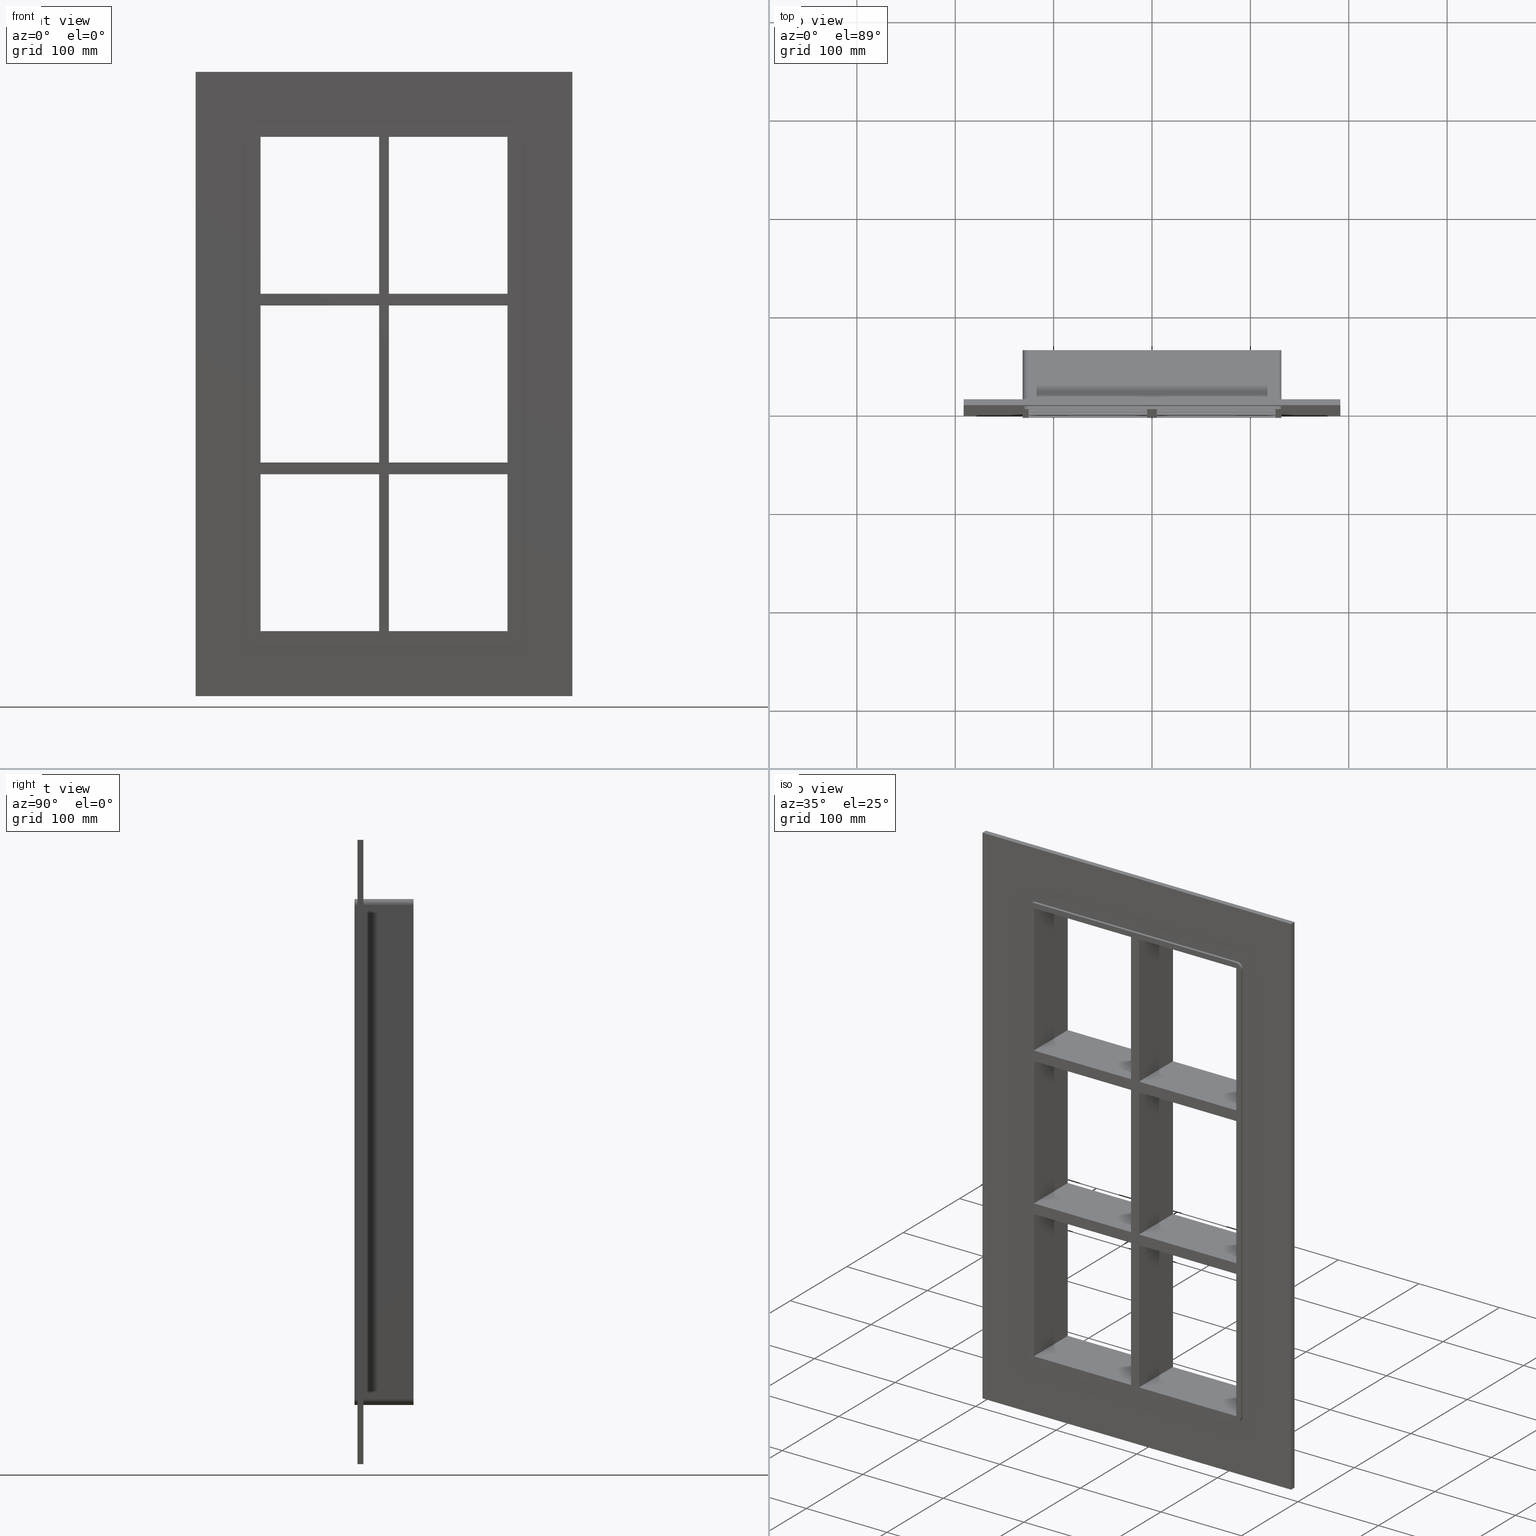
[diagram: canonical four-view strip — front | top / right | iso, engineering-drawing reading convention]
A machine part, canonical four-view strip (front | top / right | iso — engineering-drawing reading convention). The complete STEP part file that produces these views, byte-faithful:
ISO-10303-21;
HEADER;
/****************************************************************
 * Generated by software with PDElib inside                    *
 * PDElib Version v51a, created Wed 11/30/2011                  *
 * ITI Transcendata (http://www.transcendata.com/)              *
 ****************************************************************/
FILE_DESCRIPTION((''),'2;1');
FILE_NAME('C:\\RoxtecConfigurator\\CreatedFiles\\STEP\\G4+4+4X2.stp','2013-06-28T12:52:30',(''),(''),'Autodesk Inventor 2013','Autodesk Inventor 2013','');
FILE_SCHEMA(('AUTOMOTIVE_DESIGN { 1 0 10303 214 1 1 1 1 }'));
ENDSEC;
DATA;
#5=APPLICATION_CONTEXT('automotive design');
#6=APPLICATION_PROTOCOL_DEFINITION('International Standard','automotive_design',2001,#5);
#7=PRODUCT_CONTEXT('',#5,'mechanical');
#8=PRODUCT('roxtec S_SF_G','roxtec S_SF_G',$,(#7));
#9=PRODUCT_RELATED_PRODUCT_CATEGORY('part',$,(#8));
#10=PRODUCT_DEFINITION_FORMATION('',$,#8);
#11=PRODUCT_DEFINITION_CONTEXT('part definition',#5,'design');
#12=PRODUCT_DEFINITION('',$,#10,#11);
#18=(NAMED_UNIT(*)PLANE_ANGLE_UNIT()SI_UNIT($,.RADIAN.));
#19=DIMENSIONAL_EXPONENTS(0.0,0.0,0.0,0.0,0.0,0.0,0.0);
#20=PLANE_ANGLE_MEASURE_WITH_UNIT(PLANE_ANGLE_MEASURE(0.0174532925),#18);
#24=(CONVERSION_BASED_UNIT('DEGREE',#20)NAMED_UNIT(#19)PLANE_ANGLE_UNIT());
#28=(NAMED_UNIT(*)SI_UNIT($,.STERADIAN.)SOLID_ANGLE_UNIT());
#32=(LENGTH_UNIT()NAMED_UNIT(*)SI_UNIT(.MILLI.,.METRE.));
#34=UNCERTAINTY_MEASURE_WITH_UNIT(LENGTH_MEASURE(0.01),#32,'DISTANCE_ACCURACY_VALUE','');
#36=(GEOMETRIC_REPRESENTATION_CONTEXT(3)GLOBAL_UNCERTAINTY_ASSIGNED_CONTEXT((#34))GLOBAL_UNIT_ASSIGNED_CONTEXT((#24,#28,#32))REPRESENTATION_CONTEXT('None','None'));
#37=AXIS2_PLACEMENT_3D('',#38,#39,#40);
#38=CARTESIAN_POINT('',(0.0,0.0,0.0));
#39=DIRECTION('',(0.0,0.0,1.0));
#40=DIRECTION('',(1.0,0.0,0.0));
#41=SHAPE_REPRESENTATION('',(#37),#36);
#42=PRODUCT_DEFINITION_SHAPE('','',#12);
#43=SHAPE_DEFINITION_REPRESENTATION(#42,#41);
#49=(NAMED_UNIT(*)PLANE_ANGLE_UNIT()SI_UNIT($,.RADIAN.));
#50=DIMENSIONAL_EXPONENTS(0.0,0.0,0.0,0.0,0.0,0.0,0.0);
#51=PLANE_ANGLE_MEASURE_WITH_UNIT(PLANE_ANGLE_MEASURE(0.0174532925),#49);
#55=(CONVERSION_BASED_UNIT('DEGREE',#51)NAMED_UNIT(#50)PLANE_ANGLE_UNIT());
#59=(NAMED_UNIT(*)SI_UNIT($,.STERADIAN.)SOLID_ANGLE_UNIT());
#63=(LENGTH_UNIT()NAMED_UNIT(*)SI_UNIT(.MILLI.,.METRE.));
#65=UNCERTAINTY_MEASURE_WITH_UNIT(LENGTH_MEASURE(0.000001),#63,'DISTANCE_ACCURACY_VALUE','');
#67=(GEOMETRIC_REPRESENTATION_CONTEXT(3)GLOBAL_UNCERTAINTY_ASSIGNED_CONTEXT((#65))GLOBAL_UNIT_ASSIGNED_CONTEXT((#55,#59,#63))REPRESENTATION_CONTEXT('','3D'));
#68=CARTESIAN_POINT('',(125.50000000000182,-3.0,79.749999999990763));
#69=DIRECTION('',(0.0,0.0,-1.0));
#70=DIRECTION('',(-1.0,0.0,0.0));
#71=AXIS2_PLACEMENT_3D('',#68,#69,#70);
#72=PLANE('',#71);
#73=CARTESIAN_POINT('',(5.0,57.0,79.749999999990678));
#74=VERTEX_POINT('',#73);
#75=CARTESIAN_POINT('',(5.0,-3.0,79.749999999990649));
#76=VERTEX_POINT('',#75);
#77=CARTESIAN_POINT('',(5.0,57.0,79.749999999990678));
#78=DIRECTION('',(0.0,-1.0,0.0));
#79=VECTOR('',#78,60.0);
#80=LINE('',#77,#79);
#81=EDGE_CURVE('',#74,#76,#80,.T.);
#82=ORIENTED_EDGE('',*,*,#81,.F.);
#83=CARTESIAN_POINT('',(125.50000000000182,57.0,79.749999999990763));
#84=VERTEX_POINT('',#83);
#85=CARTESIAN_POINT('',(125.50000000000182,57.0,79.749999999990763));
#86=DIRECTION('',(-1.0,0.0,0.0));
#87=VECTOR('',#86,120.50000000000182);
#88=LINE('',#85,#87);
#89=EDGE_CURVE('',#84,#74,#88,.T.);
#90=ORIENTED_EDGE('',*,*,#89,.F.);
#91=CARTESIAN_POINT('',(125.50000000000182,-3.0,79.749999999990763));
#92=VERTEX_POINT('',#91);
#93=CARTESIAN_POINT('',(125.5,-3.0,79.749999999990777));
#94=DIRECTION('',(0.0,1.0,0.0));
#95=VECTOR('',#94,60.000000000000007);
#96=LINE('',#93,#95);
#97=EDGE_CURVE('',#92,#84,#96,.T.);
#98=ORIENTED_EDGE('',*,*,#97,.F.);
#99=CARTESIAN_POINT('',(125.50000000000182,-3.0,79.749999999990763));
#100=DIRECTION('',(-1.0,0.0,0.0));
#101=VECTOR('',#100,120.50000000000182);
#102=LINE('',#99,#101);
#103=EDGE_CURVE('',#92,#76,#102,.T.);
#104=ORIENTED_EDGE('',*,*,#103,.T.);
#105=EDGE_LOOP('',(#82,#90,#98,#104));
#106=FACE_OUTER_BOUND('',#105,.T.);
#107=ADVANCED_FACE('',(#106),#72,.T.);
#108=CARTESIAN_POINT('',(-125.49999999999969,-3.0,91.750000000000085));
#109=DIRECTION('',(0.0,0.0,1.0));
#110=DIRECTION('',(1.0,0.0,0.0));
#111=AXIS2_PLACEMENT_3D('',#108,#109,#110);
#112=PLANE('',#111);
#113=CARTESIAN_POINT('',(5.0,-3.0,91.750000000000085));
#114=VERTEX_POINT('',#113);
#115=CARTESIAN_POINT('',(5.0,57.0,91.750000000000085));
#116=VERTEX_POINT('',#115);
#117=CARTESIAN_POINT('',(5.0,-3.0,91.750000000000099));
#118=DIRECTION('',(0.0,1.0,0.0));
#119=VECTOR('',#118,60.0);
#120=LINE('',#117,#119);
#121=EDGE_CURVE('',#114,#116,#120,.T.);
#122=ORIENTED_EDGE('',*,*,#121,.F.);
#123=CARTESIAN_POINT('',(125.49999999999991,-3.0,91.750000000000085));
#124=VERTEX_POINT('',#123);
#125=CARTESIAN_POINT('',(5.0,-3.0,91.750000000000085));
#126=DIRECTION('',(1.0,0.0,0.0));
#127=VECTOR('',#126,120.49999999999991);
#128=LINE('',#125,#127);
#129=EDGE_CURVE('',#114,#124,#128,.T.);
#130=ORIENTED_EDGE('',*,*,#129,.T.);
#131=CARTESIAN_POINT('',(125.4999999999999,57.0,91.750000000000085));
#132=VERTEX_POINT('',#131);
#133=CARTESIAN_POINT('',(125.5,57.000000000000007,91.750000000000099));
#134=DIRECTION('',(0.0,-1.0,0.0));
#135=VECTOR('',#134,60.000000000000007);
#136=LINE('',#133,#135);
#137=EDGE_CURVE('',#132,#124,#136,.T.);
#138=ORIENTED_EDGE('',*,*,#137,.F.);
#139=CARTESIAN_POINT('',(5.0,57.0,91.750000000000085));
#140=DIRECTION('',(1.0,0.0,0.0));
#141=VECTOR('',#140,120.49999999999991);
#142=LINE('',#139,#141);
#143=EDGE_CURVE('',#116,#132,#142,.T.);
#144=ORIENTED_EDGE('',*,*,#143,.F.);
#145=EDGE_LOOP('',(#122,#130,#138,#144));
#146=FACE_OUTER_BOUND('',#145,.T.);
#147=ADVANCED_FACE('',(#146),#112,.T.);
#148=CARTESIAN_POINT('',(-125.49999999999969,-3.0,91.750000000000085));
#149=DIRECTION('',(0.0,0.0,1.0));
#150=DIRECTION('',(1.0,0.0,0.0));
#151=AXIS2_PLACEMENT_3D('',#148,#149,#150);
#152=PLANE('',#151);
#153=CARTESIAN_POINT('',(-5.00000000000134,57.0,91.750000000000114));
#154=VERTEX_POINT('',#153);
#155=CARTESIAN_POINT('',(-5.000000000001332,-3.0,91.750000000000085));
#156=VERTEX_POINT('',#155);
#157=CARTESIAN_POINT('',(-5.000000000001341,57.0,91.750000000000099));
#158=DIRECTION('',(0.0,-1.0,0.0));
#159=VECTOR('',#158,60.0);
#160=LINE('',#157,#159);
#161=EDGE_CURVE('',#154,#156,#160,.T.);
#162=ORIENTED_EDGE('',*,*,#161,.F.);
#163=CARTESIAN_POINT('',(-125.49999999999969,57.0,91.750000000000085));
#164=VERTEX_POINT('',#163);
#165=CARTESIAN_POINT('',(-125.49999999999969,57.0,91.750000000000085));
#166=DIRECTION('',(1.0,0.0,0.0));
#167=VECTOR('',#166,120.49999999999835);
#168=LINE('',#165,#167);
#169=EDGE_CURVE('',#164,#154,#168,.T.);
#170=ORIENTED_EDGE('',*,*,#169,.F.);
#171=CARTESIAN_POINT('',(-125.49999999999969,-3.0,91.750000000000085));
#172=VERTEX_POINT('',#171);
#173=CARTESIAN_POINT('',(-125.5,-3.0,91.750000000000099));
#174=DIRECTION('',(0.0,1.0,0.0));
#175=VECTOR('',#174,60.000000000000007);
#176=LINE('',#173,#175);
#177=EDGE_CURVE('',#172,#164,#176,.T.);
#178=ORIENTED_EDGE('',*,*,#177,.F.);
#179=CARTESIAN_POINT('',(-125.49999999999969,-3.0,91.750000000000085));
#180=DIRECTION('',(1.0,0.0,0.0));
#181=VECTOR('',#180,120.49999999999835);
#182=LINE('',#179,#181);
#183=EDGE_CURVE('',#172,#156,#182,.T.);
#184=ORIENTED_EDGE('',*,*,#183,.T.);
#185=EDGE_LOOP('',(#162,#170,#178,#184));
#186=FACE_OUTER_BOUND('',#185,.T.);
#187=ADVANCED_FACE('',(#186),#152,.T.);
#188=CARTESIAN_POINT('',(125.50000000000182,-3.0,79.749999999990763));
#189=DIRECTION('',(0.0,0.0,-1.0));
#190=DIRECTION('',(-1.0,0.0,0.0));
#191=AXIS2_PLACEMENT_3D('',#188,#189,#190);
#192=PLANE('',#191);
#193=CARTESIAN_POINT('',(-5.000000000001332,-3.0,79.749999999990635));
#194=VERTEX_POINT('',#193);
#195=CARTESIAN_POINT('',(-5.000000000001338,57.0,79.749999999990635));
#196=VERTEX_POINT('',#195);
#197=CARTESIAN_POINT('',(-5.000000000001341,-3.0,79.749999999990649));
#198=DIRECTION('',(0.0,1.0,0.0));
#199=VECTOR('',#198,60.0);
#200=LINE('',#197,#199);
#201=EDGE_CURVE('',#194,#196,#200,.T.);
#202=ORIENTED_EDGE('',*,*,#201,.F.);
#203=CARTESIAN_POINT('',(-125.49999999999969,-3.0,79.749999999990536));
#204=VERTEX_POINT('',#203);
#205=CARTESIAN_POINT('',(-5.000000000001336,-3.0,79.749999999990649));
#206=DIRECTION('',(-1.0,0.0,0.0));
#207=VECTOR('',#206,120.49999999999835);
#208=LINE('',#205,#207);
#209=EDGE_CURVE('',#194,#204,#208,.T.);
#210=ORIENTED_EDGE('',*,*,#209,.T.);
#211=CARTESIAN_POINT('',(-125.49999999999969,57.0,79.749999999990536));
#212=VERTEX_POINT('',#211);
#213=CARTESIAN_POINT('',(-125.5,57.000000000000007,79.74999999999055));
#214=DIRECTION('',(0.0,-1.0,0.0));
#215=VECTOR('',#214,60.000000000000007);
#216=LINE('',#213,#215);
#217=EDGE_CURVE('',#212,#204,#216,.T.);
#218=ORIENTED_EDGE('',*,*,#217,.F.);
#219=CARTESIAN_POINT('',(-5.000000000001336,57.0,79.749999999990649));
#220=DIRECTION('',(-1.0,0.0,0.0));
#221=VECTOR('',#220,120.49999999999835);
#222=LINE('',#219,#221);
#223=EDGE_CURVE('',#196,#212,#222,.T.);
#224=ORIENTED_EDGE('',*,*,#223,.F.);
#225=EDGE_LOOP('',(#202,#210,#218,#224));
#226=FACE_OUTER_BOUND('',#225,.T.);
#227=ADVANCED_FACE('',(#226),#192,.T.);
#228=CARTESIAN_POINT('',(-125.5,0.0,-251.25));
#229=DIRECTION('',(-1.0,0.0,0.0));
#230=DIRECTION('',(0.0,0.0,1.0));
#231=AXIS2_PLACEMENT_3D('',#228,#229,#230);
#232=PLANE('',#231);
#233=ORIENTED_EDGE('',*,*,#217,.T.);
#234=CARTESIAN_POINT('',(-125.49999999999969,-3.0,-79.749999999999943));
#235=VERTEX_POINT('',#234);
#236=CARTESIAN_POINT('',(-125.5,-3.0,-79.749999999999943));
#237=DIRECTION('',(0.0,0.0,1.0));
#238=VECTOR('',#237,159.49999999999048);
#239=LINE('',#236,#238);
#240=EDGE_CURVE('',#235,#204,#239,.T.);
#241=ORIENTED_EDGE('',*,*,#240,.F.);
#242=CARTESIAN_POINT('',(-125.49999999999969,57.0,-79.749999999999943));
#243=VERTEX_POINT('',#242);
#244=CARTESIAN_POINT('',(-125.5,-3.0,-79.749999999999943));
#245=DIRECTION('',(0.0,1.0,0.0));
#246=VECTOR('',#245,60.000000000000007);
#247=LINE('',#244,#246);
#248=EDGE_CURVE('',#235,#243,#247,.T.);
#249=ORIENTED_EDGE('',*,*,#248,.T.);
#250=CARTESIAN_POINT('',(-125.5,57.0,79.749999999990536));
#251=DIRECTION('',(0.0,0.0,-1.0));
#252=VECTOR('',#251,159.49999999999048);
#253=LINE('',#250,#252);
#254=EDGE_CURVE('',#212,#243,#253,.T.);
#255=ORIENTED_EDGE('',*,*,#254,.F.);
#256=EDGE_LOOP('',(#233,#241,#249,#255));
#257=FACE_OUTER_BOUND('',#256,.T.);
#258=ADVANCED_FACE('',(#257),#232,.F.);
#259=CARTESIAN_POINT('',(125.5,0.0,251.25));
#260=DIRECTION('',(1.0,0.0,0.0));
#261=DIRECTION('',(0.0,0.0,-1.0));
#262=AXIS2_PLACEMENT_3D('',#259,#260,#261);
#263=PLANE('',#262);
#264=ORIENTED_EDGE('',*,*,#97,.T.);
#265=CARTESIAN_POINT('',(125.4999999999999,57.0,-79.749999999999943));
#266=VERTEX_POINT('',#265);
#267=CARTESIAN_POINT('',(125.5,57.0,-79.749999999999943));
#268=DIRECTION('',(0.0,0.0,1.0));
#269=VECTOR('',#268,159.49999999999071);
#270=LINE('',#267,#269);
#271=EDGE_CURVE('',#266,#84,#270,.T.);
#272=ORIENTED_EDGE('',*,*,#271,.F.);
#273=CARTESIAN_POINT('',(125.49999999999991,-3.0,-79.749999999999943));
#274=VERTEX_POINT('',#273);
#275=CARTESIAN_POINT('',(125.5,57.000000000000007,-79.749999999999943));
#276=DIRECTION('',(0.0,-1.0,0.0));
#277=VECTOR('',#276,60.000000000000007);
#278=LINE('',#275,#277);
#279=EDGE_CURVE('',#266,#274,#278,.T.);
#280=ORIENTED_EDGE('',*,*,#279,.T.);
#281=CARTESIAN_POINT('',(125.5,-3.0,79.749999999990763));
#282=DIRECTION('',(0.0,0.0,-1.0));
#283=VECTOR('',#282,159.49999999999071);
#284=LINE('',#281,#283);
#285=EDGE_CURVE('',#92,#274,#284,.T.);
#286=ORIENTED_EDGE('',*,*,#285,.F.);
#287=EDGE_LOOP('',(#264,#272,#280,#286));
#288=FACE_OUTER_BOUND('',#287,.T.);
#289=ADVANCED_FACE('',(#288),#263,.F.);
#290=CARTESIAN_POINT('',(125.5,0.0,251.25));
#291=DIRECTION('',(1.0,0.0,0.0));
#292=DIRECTION('',(0.0,0.0,-1.0));
#293=AXIS2_PLACEMENT_3D('',#290,#291,#292);
#294=PLANE('',#293);
#295=ORIENTED_EDGE('',*,*,#137,.T.);
#296=CARTESIAN_POINT('',(125.5,-3.0,251.25));
#297=VERTEX_POINT('',#296);
#298=CARTESIAN_POINT('',(125.5,-3.0,251.25));
#299=DIRECTION('',(0.0,0.0,-1.0));
#300=VECTOR('',#299,159.49999999999991);
#301=LINE('',#298,#300);
#302=EDGE_CURVE('',#297,#124,#301,.T.);
#303=ORIENTED_EDGE('',*,*,#302,.F.);
#304=CARTESIAN_POINT('',(125.5,57.0,251.25));
#305=VERTEX_POINT('',#304);
#306=CARTESIAN_POINT('',(125.5,-3.0,251.25));
#307=DIRECTION('',(0.0,1.0,0.0));
#308=VECTOR('',#307,60.0);
#309=LINE('',#306,#308);
#310=EDGE_CURVE('',#297,#305,#309,.T.);
#311=ORIENTED_EDGE('',*,*,#310,.T.);
#312=CARTESIAN_POINT('',(125.5,57.0,91.750000000000085));
#313=DIRECTION('',(0.0,0.0,1.0));
#314=VECTOR('',#313,159.49999999999991);
#315=LINE('',#312,#314);
#316=EDGE_CURVE('',#132,#305,#315,.T.);
#317=ORIENTED_EDGE('',*,*,#316,.F.);
#318=EDGE_LOOP('',(#295,#303,#311,#317));
#319=FACE_OUTER_BOUND('',#318,.T.);
#320=ADVANCED_FACE('',(#319),#294,.F.);
#321=CARTESIAN_POINT('',(-5.000000000001279,-3.0,-251.25));
#322=DIRECTION('',(-1.0,0.0,0.0));
#323=DIRECTION('',(0.0,0.0,1.0));
#324=AXIS2_PLACEMENT_3D('',#321,#322,#323);
#325=PLANE('',#324);
#326=ORIENTED_EDGE('',*,*,#161,.T.);
#327=CARTESIAN_POINT('',(-5.000000000001368,-3.0,251.25));
#328=VERTEX_POINT('',#327);
#329=CARTESIAN_POINT('',(-5.000000000001339,-3.0,91.750000000000114));
#330=DIRECTION('',(0.0,0.0,1.0));
#331=VECTOR('',#330,159.49999999999989);
#332=LINE('',#329,#331);
#333=EDGE_CURVE('',#156,#328,#332,.T.);
#334=ORIENTED_EDGE('',*,*,#333,.T.);
#335=CARTESIAN_POINT('',(-5.000000000001368,57.0,251.25));
#336=VERTEX_POINT('',#335);
#337=CARTESIAN_POINT('',(-5.000000000001368,57.000000000000007,251.25));
#338=DIRECTION('',(0.0,-1.0,0.0));
#339=VECTOR('',#338,60.000000000000007);
#340=LINE('',#337,#339);
#341=EDGE_CURVE('',#336,#328,#340,.T.);
#342=ORIENTED_EDGE('',*,*,#341,.F.);
#343=CARTESIAN_POINT('',(-5.000000000001339,57.0,91.750000000000114));
#344=DIRECTION('',(0.0,0.0,1.0));
#345=VECTOR('',#344,159.49999999999989);
#346=LINE('',#343,#345);
#347=EDGE_CURVE('',#154,#336,#346,.T.);
#348=ORIENTED_EDGE('',*,*,#347,.F.);
#349=EDGE_LOOP('',(#326,#334,#342,#348));
#350=FACE_OUTER_BOUND('',#349,.T.);
#351=ADVANCED_FACE('',(#350),#325,.T.);
#352=CARTESIAN_POINT('',(-5.000000000001279,-3.0,-251.25));
#353=DIRECTION('',(-1.0,0.0,0.0));
#354=DIRECTION('',(0.0,0.0,1.0));
#355=AXIS2_PLACEMENT_3D('',#352,#353,#354);
#356=PLANE('',#355);
#357=ORIENTED_EDGE('',*,*,#201,.T.);
#358=CARTESIAN_POINT('',(-5.000000000001315,57.0,-79.749999999999943));
#359=VERTEX_POINT('',#358);
#360=CARTESIAN_POINT('',(-5.000000000001309,57.0,-79.749999999999943));
#361=DIRECTION('',(0.0,0.0,1.0));
#362=VECTOR('',#361,159.49999999999056);
#363=LINE('',#360,#362);
#364=EDGE_CURVE('',#359,#196,#363,.T.);
#365=ORIENTED_EDGE('',*,*,#364,.F.);
#366=CARTESIAN_POINT('',(-5.000000000001315,-3.0,-79.749999999999943));
#367=VERTEX_POINT('',#366);
#368=CARTESIAN_POINT('',(-5.000000000001306,57.0,-79.749999999999943));
#369=DIRECTION('',(0.0,-1.0,0.0));
#370=VECTOR('',#369,60.0);
#371=LINE('',#368,#370);
#372=EDGE_CURVE('',#359,#367,#371,.T.);
#373=ORIENTED_EDGE('',*,*,#372,.T.);
#374=CARTESIAN_POINT('',(-5.000000000001309,-3.0,-79.749999999999943));
#375=DIRECTION('',(0.0,0.0,1.0));
#376=VECTOR('',#375,159.49999999999056);
#377=LINE('',#374,#376);
#378=EDGE_CURVE('',#367,#194,#377,.T.);
#379=ORIENTED_EDGE('',*,*,#378,.T.);
#380=EDGE_LOOP('',(#357,#365,#373,#379));
#381=FACE_OUTER_BOUND('',#380,.T.);
#382=ADVANCED_FACE('',(#381),#356,.T.);
#383=CARTESIAN_POINT('',(5.0,-3.0,251.25));
#384=DIRECTION('',(1.0,0.0,0.0));
#385=DIRECTION('',(0.0,0.0,-1.0));
#386=AXIS2_PLACEMENT_3D('',#383,#384,#385);
#387=PLANE('',#386);
#388=ORIENTED_EDGE('',*,*,#121,.T.);
#389=CARTESIAN_POINT('',(5.0,57.0,251.25));
#390=VERTEX_POINT('',#389);
#391=CARTESIAN_POINT('',(5.0,57.0,251.25));
#392=DIRECTION('',(0.0,0.0,-1.0));
#393=VECTOR('',#392,159.49999999999991);
#394=LINE('',#391,#393);
#395=EDGE_CURVE('',#390,#116,#394,.T.);
#396=ORIENTED_EDGE('',*,*,#395,.F.);
#397=CARTESIAN_POINT('',(5.0,-3.0,251.25));
#398=VERTEX_POINT('',#397);
#399=CARTESIAN_POINT('',(5.0,-3.0,251.25));
#400=DIRECTION('',(0.0,1.0,0.0));
#401=VECTOR('',#400,60.000000000000007);
#402=LINE('',#399,#401);
#403=EDGE_CURVE('',#398,#390,#402,.T.);
#404=ORIENTED_EDGE('',*,*,#403,.F.);
#405=CARTESIAN_POINT('',(5.0,-3.0,251.25));
#406=DIRECTION('',(0.0,0.0,-1.0));
#407=VECTOR('',#406,159.49999999999991);
#408=LINE('',#405,#407);
#409=EDGE_CURVE('',#398,#114,#408,.T.);
#410=ORIENTED_EDGE('',*,*,#409,.T.);
#411=EDGE_LOOP('',(#388,#396,#404,#410));
#412=FACE_OUTER_BOUND('',#411,.T.);
#413=ADVANCED_FACE('',(#412),#387,.T.);
#414=CARTESIAN_POINT('',(125.50000000000182,-3.0,-91.750000000009265));
#415=DIRECTION('',(0.0,0.0,-1.0));
#416=DIRECTION('',(-1.0,0.0,0.0));
#417=AXIS2_PLACEMENT_3D('',#414,#415,#416);
#418=PLANE('',#417);
#419=CARTESIAN_POINT('',(5.0,57.0,-91.750000000009365));
#420=VERTEX_POINT('',#419);
#421=CARTESIAN_POINT('',(5.0,-3.0,-91.750000000009365));
#422=VERTEX_POINT('',#421);
#423=CARTESIAN_POINT('',(5.0,57.0,-91.750000000009408));
#424=DIRECTION('',(0.0,-1.0,0.0));
#425=VECTOR('',#424,60.0);
#426=LINE('',#423,#425);
#427=EDGE_CURVE('',#420,#422,#426,.T.);
#428=ORIENTED_EDGE('',*,*,#427,.F.);
#429=CARTESIAN_POINT('',(125.50000000000182,57.0,-91.750000000009265));
#430=VERTEX_POINT('',#429);
#431=CARTESIAN_POINT('',(125.50000000000182,57.0,-91.750000000009265));
#432=DIRECTION('',(-1.0,0.0,0.0));
#433=VECTOR('',#432,120.50000000000182);
#434=LINE('',#431,#433);
#435=EDGE_CURVE('',#430,#420,#434,.T.);
#436=ORIENTED_EDGE('',*,*,#435,.F.);
#437=CARTESIAN_POINT('',(125.50000000000182,-3.0,-91.750000000009265));
#438=VERTEX_POINT('',#437);
#439=CARTESIAN_POINT('',(125.5,-3.0,-91.75000000000928));
#440=DIRECTION('',(0.0,1.0,0.0));
#441=VECTOR('',#440,60.000000000000007);
#442=LINE('',#439,#441);
#443=EDGE_CURVE('',#438,#430,#442,.T.);
#444=ORIENTED_EDGE('',*,*,#443,.F.);
#445=CARTESIAN_POINT('',(125.50000000000182,-3.0,-91.750000000009265));
#446=DIRECTION('',(-1.0,0.0,0.0));
#447=VECTOR('',#446,120.50000000000182);
#448=LINE('',#445,#447);
#449=EDGE_CURVE('',#438,#422,#448,.T.);
#450=ORIENTED_EDGE('',*,*,#449,.T.);
#451=EDGE_LOOP('',(#428,#436,#444,#450));
#452=FACE_OUTER_BOUND('',#451,.T.);
#453=ADVANCED_FACE('',(#452),#418,.T.);
#454=CARTESIAN_POINT('',(125.50000000000182,-3.0,-91.750000000009265));
#455=DIRECTION('',(0.0,0.0,-1.0));
#456=DIRECTION('',(-1.0,0.0,0.0));
#457=AXIS2_PLACEMENT_3D('',#454,#455,#456);
#458=PLANE('',#457);
#459=CARTESIAN_POINT('',(-5.000000000001315,-3.0,-91.750000000009379));
#460=VERTEX_POINT('',#459);
#461=CARTESIAN_POINT('',(-5.000000000001315,57.0,-91.750000000009379));
#462=VERTEX_POINT('',#461);
#463=CARTESIAN_POINT('',(-5.000000000001306,-3.0,-91.750000000009379));
#464=DIRECTION('',(0.0,1.0,0.0));
#465=VECTOR('',#464,60.0);
#466=LINE('',#463,#465);
#467=EDGE_CURVE('',#460,#462,#466,.T.);
#468=ORIENTED_EDGE('',*,*,#467,.F.);
#469=CARTESIAN_POINT('',(-125.49999999999969,-3.0,-91.750000000009493));
#470=VERTEX_POINT('',#469);
#471=CARTESIAN_POINT('',(-5.000000000001307,-3.0,-91.750000000009379));
#472=DIRECTION('',(-1.0,0.0,0.0));
#473=VECTOR('',#472,120.49999999999838);
#474=LINE('',#471,#473);
#475=EDGE_CURVE('',#460,#470,#474,.T.);
#476=ORIENTED_EDGE('',*,*,#475,.T.);
#477=CARTESIAN_POINT('',(-125.49999999999969,57.0,-91.750000000009493));
#478=VERTEX_POINT('',#477);
#479=CARTESIAN_POINT('',(-125.5,57.000000000000007,-91.750000000009507));
#480=DIRECTION('',(0.0,-1.0,0.0));
#481=VECTOR('',#480,60.000000000000007);
#482=LINE('',#479,#481);
#483=EDGE_CURVE('',#478,#470,#482,.T.);
#484=ORIENTED_EDGE('',*,*,#483,.F.);
#485=CARTESIAN_POINT('',(-5.000000000001307,57.0,-91.750000000009379));
#486=DIRECTION('',(-1.0,0.0,0.0));
#487=VECTOR('',#486,120.49999999999838);
#488=LINE('',#485,#487);
#489=EDGE_CURVE('',#462,#478,#488,.T.);
#490=ORIENTED_EDGE('',*,*,#489,.F.);
#491=EDGE_LOOP('',(#468,#476,#484,#490));
#492=FACE_OUTER_BOUND('',#491,.T.);
#493=ADVANCED_FACE('',(#492),#458,.T.);
#494=CARTESIAN_POINT('',(-125.49999999999969,-3.0,-79.749999999999943));
#495=DIRECTION('',(0.0,0.0,1.0));
#496=DIRECTION('',(1.0,0.0,0.0));
#497=AXIS2_PLACEMENT_3D('',#494,#495,#496);
#498=PLANE('',#497);
#499=CARTESIAN_POINT('',(5.0,-3.0,-79.749999999999943));
#500=VERTEX_POINT('',#499);
#501=CARTESIAN_POINT('',(5.0,57.0,-79.749999999999943));
#502=VERTEX_POINT('',#501);
#503=CARTESIAN_POINT('',(5.0,-3.0,-79.749999999999943));
#504=DIRECTION('',(0.0,1.0,0.0));
#505=VECTOR('',#504,60.0);
#506=LINE('',#503,#505);
#507=EDGE_CURVE('',#500,#502,#506,.T.);
#508=ORIENTED_EDGE('',*,*,#507,.F.);
#509=CARTESIAN_POINT('',(5.0,-3.0,-79.749999999999943));
#510=DIRECTION('',(1.0,0.0,0.0));
#511=VECTOR('',#510,120.49999999999991);
#512=LINE('',#509,#511);
#513=EDGE_CURVE('',#500,#274,#512,.T.);
#514=ORIENTED_EDGE('',*,*,#513,.T.);
#515=ORIENTED_EDGE('',*,*,#279,.F.);
#516=CARTESIAN_POINT('',(5.0,57.0,-79.749999999999943));
#517=DIRECTION('',(1.0,0.0,0.0));
#518=VECTOR('',#517,120.49999999999991);
#519=LINE('',#516,#518);
#520=EDGE_CURVE('',#502,#266,#519,.T.);
#521=ORIENTED_EDGE('',*,*,#520,.F.);
#522=EDGE_LOOP('',(#508,#514,#515,#521));
#523=FACE_OUTER_BOUND('',#522,.T.);
#524=ADVANCED_FACE('',(#523),#498,.T.);
#525=CARTESIAN_POINT('',(-125.49999999999969,-3.0,-79.749999999999943));
#526=DIRECTION('',(0.0,0.0,1.0));
#527=DIRECTION('',(1.0,0.0,0.0));
#528=AXIS2_PLACEMENT_3D('',#525,#526,#527);
#529=PLANE('',#528);
#530=ORIENTED_EDGE('',*,*,#372,.F.);
#531=CARTESIAN_POINT('',(-125.49999999999969,57.0,-79.749999999999943));
#532=DIRECTION('',(1.0,0.0,0.0));
#533=VECTOR('',#532,120.49999999999838);
#534=LINE('',#531,#533);
#535=EDGE_CURVE('',#243,#359,#534,.T.);
#536=ORIENTED_EDGE('',*,*,#535,.F.);
#537=ORIENTED_EDGE('',*,*,#248,.F.);
#538=CARTESIAN_POINT('',(-125.49999999999969,-3.0,-79.749999999999943));
#539=DIRECTION('',(1.0,0.0,0.0));
#540=VECTOR('',#539,120.49999999999838);
#541=LINE('',#538,#540);
#542=EDGE_CURVE('',#235,#367,#541,.T.);
#543=ORIENTED_EDGE('',*,*,#542,.T.);
#544=EDGE_LOOP('',(#530,#536,#537,#543));
#545=FACE_OUTER_BOUND('',#544,.T.);
#546=ADVANCED_FACE('',(#545),#529,.T.);
#547=CARTESIAN_POINT('',(-125.5,0.0,-251.25));
#548=DIRECTION('',(-1.0,0.0,0.0));
#549=DIRECTION('',(0.0,0.0,1.0));
#550=AXIS2_PLACEMENT_3D('',#547,#548,#549);
#551=PLANE('',#550);
#552=ORIENTED_EDGE('',*,*,#177,.T.);
#553=CARTESIAN_POINT('',(-125.5,57.0,251.25));
#554=VERTEX_POINT('',#553);
#555=CARTESIAN_POINT('',(-125.5,57.0,251.25));
#556=DIRECTION('',(0.0,0.0,-1.0));
#557=VECTOR('',#556,159.49999999999991);
#558=LINE('',#555,#557);
#559=EDGE_CURVE('',#554,#164,#558,.T.);
#560=ORIENTED_EDGE('',*,*,#559,.F.);
#561=CARTESIAN_POINT('',(-125.5,-3.0,251.25));
#562=VERTEX_POINT('',#561);
#563=CARTESIAN_POINT('',(-125.5,-3.0,251.25));
#564=DIRECTION('',(0.0,1.0,0.0));
#565=VECTOR('',#564,60.0);
#566=LINE('',#563,#565);
#567=EDGE_CURVE('',#562,#554,#566,.T.);
#568=ORIENTED_EDGE('',*,*,#567,.F.);
#569=CARTESIAN_POINT('',(-125.5,-3.0,91.750000000000085));
#570=DIRECTION('',(0.0,0.0,1.0));
#571=VECTOR('',#570,159.49999999999991);
#572=LINE('',#569,#571);
#573=EDGE_CURVE('',#172,#562,#572,.T.);
#574=ORIENTED_EDGE('',*,*,#573,.F.);
#575=EDGE_LOOP('',(#552,#560,#568,#574));
#576=FACE_OUTER_BOUND('',#575,.T.);
#577=ADVANCED_FACE('',(#576),#551,.F.);
#578=CARTESIAN_POINT('',(125.5,0.0,251.25));
#579=DIRECTION('',(1.0,0.0,0.0));
#580=DIRECTION('',(0.0,0.0,-1.0));
#581=AXIS2_PLACEMENT_3D('',#578,#579,#580);
#582=PLANE('',#581);
#583=ORIENTED_EDGE('',*,*,#443,.T.);
#584=CARTESIAN_POINT('',(125.5,57.0,-251.25));
#585=VERTEX_POINT('',#584);
#586=CARTESIAN_POINT('',(125.5,57.0,-251.25));
#587=DIRECTION('',(0.0,0.0,1.0));
#588=VECTOR('',#587,159.49999999999073);
#589=LINE('',#586,#588);
#590=EDGE_CURVE('',#585,#430,#589,.T.);
#591=ORIENTED_EDGE('',*,*,#590,.F.);
#592=CARTESIAN_POINT('',(125.5,-3.0,-251.25));
#593=VERTEX_POINT('',#592);
#594=CARTESIAN_POINT('',(125.5,56.999999999999993,-251.25));
#595=DIRECTION('',(0.0,-1.0,0.0));
#596=VECTOR('',#595,59.999999999999993);
#597=LINE('',#594,#596);
#598=EDGE_CURVE('',#585,#593,#597,.T.);
#599=ORIENTED_EDGE('',*,*,#598,.T.);
#600=CARTESIAN_POINT('',(125.5,-3.0,-91.750000000009265));
#601=DIRECTION('',(0.0,0.0,-1.0));
#602=VECTOR('',#601,159.49999999999073);
#603=LINE('',#600,#602);
#604=EDGE_CURVE('',#438,#593,#603,.T.);
#605=ORIENTED_EDGE('',*,*,#604,.F.);
#606=EDGE_LOOP('',(#583,#591,#599,#605));
#607=FACE_OUTER_BOUND('',#606,.T.);
#608=ADVANCED_FACE('',(#607),#582,.F.);
#609=CARTESIAN_POINT('',(1.397096E-014,57.0,0.0));
#610=DIRECTION('',(0.0,1.0,0.0));
#611=DIRECTION('',(0.0,0.0,1.0));
#612=AXIS2_PLACEMENT_3D('',#609,#610,#611);
#613=PLANE('',#612);
#614=CARTESIAN_POINT('',(125.5,57.0,-257.25));
#615=VERTEX_POINT('',#614);
#616=CARTESIAN_POINT('',(131.50000000000003,57.0,-251.25));
#617=VERTEX_POINT('',#616);
#618=CARTESIAN_POINT('',(125.5,57.0,-251.25));
#619=DIRECTION('',(0.0,-1.0,0.0));
#620=DIRECTION('',(0.707106781186548,0.0,-0.707106781186548));
#621=AXIS2_PLACEMENT_3D('',#618,#619,#620);
#622=CIRCLE('',#621,6.000000000000002);
#623=EDGE_CURVE('',#615,#617,#622,.T.);
#624=ORIENTED_EDGE('',*,*,#623,.F.);
#625=CARTESIAN_POINT('',(-125.5,57.0,-257.25));
#626=VERTEX_POINT('',#625);
#627=CARTESIAN_POINT('',(125.50000000000001,57.0,-257.25));
#628=DIRECTION('',(-1.0,0.0,0.0));
#629=VECTOR('',#628,251.0);
#630=LINE('',#627,#629);
#631=EDGE_CURVE('',#615,#626,#630,.T.);
#632=ORIENTED_EDGE('',*,*,#631,.T.);
#633=CARTESIAN_POINT('',(-131.5,57.0,-251.25));
#634=VERTEX_POINT('',#633);
#635=CARTESIAN_POINT('',(-125.5,57.0,-251.25));
#636=DIRECTION('',(0.0,-1.0,0.0));
#637=DIRECTION('',(-0.707106781186545,0.0,-0.70710678118655));
#638=AXIS2_PLACEMENT_3D('',#635,#636,#637);
#639=CIRCLE('',#638,6.000000000000001);
#640=EDGE_CURVE('',#634,#626,#639,.T.);
#641=ORIENTED_EDGE('',*,*,#640,.F.);
#642=CARTESIAN_POINT('',(-131.5,57.0,251.25));
#643=VERTEX_POINT('',#642);
#644=CARTESIAN_POINT('',(-131.5,57.0,-251.25));
#645=DIRECTION('',(0.0,0.0,1.0));
#646=VECTOR('',#645,502.5);
#647=LINE('',#644,#646);
#648=EDGE_CURVE('',#634,#643,#647,.T.);
#649=ORIENTED_EDGE('',*,*,#648,.T.);
#650=CARTESIAN_POINT('',(-125.49999999999997,57.0,257.25));
#651=VERTEX_POINT('',#650);
#652=CARTESIAN_POINT('',(-125.49999999999997,57.0,251.25));
#653=DIRECTION('',(0.0,-1.0,0.0));
#654=DIRECTION('',(-0.707106781186548,0.0,0.707106781186548));
#655=AXIS2_PLACEMENT_3D('',#652,#653,#654);
#656=CIRCLE('',#655,6.000000000000002);
#657=EDGE_CURVE('',#651,#643,#656,.T.);
#658=ORIENTED_EDGE('',*,*,#657,.F.);
#659=CARTESIAN_POINT('',(125.50000000000004,57.0,257.25));
#660=VERTEX_POINT('',#659);
#661=CARTESIAN_POINT('',(-125.49999999999999,57.0,257.25));
#662=DIRECTION('',(1.0,0.0,0.0));
#663=VECTOR('',#662,251.0);
#664=LINE('',#661,#663);
#665=EDGE_CURVE('',#651,#660,#664,.T.);
#666=ORIENTED_EDGE('',*,*,#665,.T.);
#667=CARTESIAN_POINT('',(131.50000000000003,57.0,251.25));
#668=VERTEX_POINT('',#667);
#669=CARTESIAN_POINT('',(125.50000000000004,57.0,251.25));
#670=DIRECTION('',(0.0,-1.0,0.0));
#671=DIRECTION('',(0.707106781186545,0.0,0.70710678118655));
#672=AXIS2_PLACEMENT_3D('',#669,#670,#671);
#673=CIRCLE('',#672,6.000000000000001);
#674=EDGE_CURVE('',#668,#660,#673,.T.);
#675=ORIENTED_EDGE('',*,*,#674,.F.);
#676=CARTESIAN_POINT('',(131.50000000000003,57.0,251.25));
#677=DIRECTION('',(0.0,0.0,-1.0));
#678=VECTOR('',#677,502.5);
#679=LINE('',#676,#678);
#680=EDGE_CURVE('',#668,#617,#679,.T.);
#681=ORIENTED_EDGE('',*,*,#680,.T.);
#682=EDGE_LOOP('',(#624,#632,#641,#649,#658,#666,#675,#681));
#683=FACE_OUTER_BOUND('',#682,.T.);
#684=ORIENTED_EDGE('',*,*,#254,.T.);
#685=ORIENTED_EDGE('',*,*,#535,.T.);
#686=ORIENTED_EDGE('',*,*,#364,.T.);
#687=ORIENTED_EDGE('',*,*,#223,.T.);
#688=EDGE_LOOP('',(#684,#685,#686,#687));
#689=FACE_BOUND('',#688,.T.);
#690=ORIENTED_EDGE('',*,*,#316,.T.);
#691=CARTESIAN_POINT('',(125.5,57.0,251.25));
#692=DIRECTION('',(-1.0,0.0,0.0));
#693=VECTOR('',#692,120.5);
#694=LINE('',#691,#693);
#695=EDGE_CURVE('',#305,#390,#694,.T.);
#696=ORIENTED_EDGE('',*,*,#695,.T.);
#697=ORIENTED_EDGE('',*,*,#395,.T.);
#698=ORIENTED_EDGE('',*,*,#143,.T.);
#699=EDGE_LOOP('',(#690,#696,#697,#698));
#700=FACE_BOUND('',#699,.T.);
#701=ORIENTED_EDGE('',*,*,#89,.T.);
#702=CARTESIAN_POINT('',(5.0,57.0,79.749999999990678));
#703=DIRECTION('',(0.0,0.0,-1.0));
#704=VECTOR('',#703,159.49999999999062);
#705=LINE('',#702,#704);
#706=EDGE_CURVE('',#74,#502,#705,.T.);
#707=ORIENTED_EDGE('',*,*,#706,.T.);
#708=ORIENTED_EDGE('',*,*,#520,.T.);
#709=ORIENTED_EDGE('',*,*,#271,.T.);
#710=EDGE_LOOP('',(#701,#707,#708,#709));
#711=FACE_BOUND('',#710,.T.);
#712=ORIENTED_EDGE('',*,*,#169,.T.);
#713=ORIENTED_EDGE('',*,*,#347,.T.);
#714=CARTESIAN_POINT('',(-5.000000000001364,57.0,251.25));
#715=DIRECTION('',(-1.0,0.0,0.0));
#716=VECTOR('',#715,120.49999999999864);
#717=LINE('',#714,#716);
#718=EDGE_CURVE('',#336,#554,#717,.T.);
#719=ORIENTED_EDGE('',*,*,#718,.T.);
#720=ORIENTED_EDGE('',*,*,#559,.T.);
#721=EDGE_LOOP('',(#712,#713,#719,#720));
#722=FACE_BOUND('',#721,.T.);
#723=CARTESIAN_POINT('',(-125.5,57.0,-251.25));
#724=VERTEX_POINT('',#723);
#725=CARTESIAN_POINT('',(-125.5,57.0,-91.750000000009493));
#726=DIRECTION('',(0.0,0.0,-1.0));
#727=VECTOR('',#726,159.49999999999051);
#728=LINE('',#725,#727);
#729=EDGE_CURVE('',#478,#724,#728,.T.);
#730=ORIENTED_EDGE('',*,*,#729,.T.);
#731=CARTESIAN_POINT('',(-5.000000000001279,57.0,-251.25));
#732=VERTEX_POINT('',#731);
#733=CARTESIAN_POINT('',(-125.50000000000001,57.0,-251.25));
#734=DIRECTION('',(1.0,0.0,0.0));
#735=VECTOR('',#734,120.49999999999874);
#736=LINE('',#733,#735);
#737=EDGE_CURVE('',#724,#732,#736,.T.);
#738=ORIENTED_EDGE('',*,*,#737,.T.);
#739=CARTESIAN_POINT('',(-5.000000000001279,57.0,-251.25));
#740=DIRECTION('',(0.0,0.0,1.0));
#741=VECTOR('',#740,159.49999999999062);
#742=LINE('',#739,#741);
#743=EDGE_CURVE('',#732,#462,#742,.T.);
#744=ORIENTED_EDGE('',*,*,#743,.T.);
#745=ORIENTED_EDGE('',*,*,#489,.T.);
#746=EDGE_LOOP('',(#730,#738,#744,#745));
#747=FACE_BOUND('',#746,.T.);
#748=ORIENTED_EDGE('',*,*,#435,.T.);
#749=CARTESIAN_POINT('',(5.0,57.0,-251.24999999998423));
#750=VERTEX_POINT('',#749);
#751=CARTESIAN_POINT('',(5.0,57.0,-91.750000000009322));
#752=DIRECTION('',(0.0,0.0,-1.0));
#753=VECTOR('',#752,159.49999999997488);
#754=LINE('',#751,#753);
#755=EDGE_CURVE('',#420,#750,#754,.T.);
#756=ORIENTED_EDGE('',*,*,#755,.T.);
#757=CARTESIAN_POINT('',(5.0,57.0,-251.25));
#758=DIRECTION('',(1.0,0.0,0.0));
#759=VECTOR('',#758,120.5);
#760=LINE('',#757,#759);
#761=EDGE_CURVE('',#750,#585,#760,.T.);
#762=ORIENTED_EDGE('',*,*,#761,.T.);
#763=ORIENTED_EDGE('',*,*,#590,.T.);
#764=EDGE_LOOP('',(#748,#756,#762,#763));
#765=FACE_BOUND('',#764,.T.);
#766=ADVANCED_FACE('',(#683,#689,#700,#711,#722,#747,#765),#613,.T.);
#767=CARTESIAN_POINT('',(5.0,-3.0,251.25));
#768=DIRECTION('',(1.0,0.0,0.0));
#769=DIRECTION('',(0.0,0.0,-1.0));
#770=AXIS2_PLACEMENT_3D('',#767,#768,#769);
#771=PLANE('',#770);
#772=ORIENTED_EDGE('',*,*,#81,.T.);
#773=CARTESIAN_POINT('',(5.0,-3.0,79.749999999990621));
#774=DIRECTION('',(0.0,0.0,-1.0));
#775=VECTOR('',#774,159.49999999999056);
#776=LINE('',#773,#775);
#777=EDGE_CURVE('',#76,#500,#776,.T.);
#778=ORIENTED_EDGE('',*,*,#777,.T.);
#779=ORIENTED_EDGE('',*,*,#507,.T.);
#780=ORIENTED_EDGE('',*,*,#706,.F.);
#781=EDGE_LOOP('',(#772,#778,#779,#780));
#782=FACE_OUTER_BOUND('',#781,.T.);
#783=ADVANCED_FACE('',(#782),#771,.T.);
#784=CARTESIAN_POINT('',(-5.000000000001279,-3.0,-251.25));
#785=DIRECTION('',(-1.0,0.0,0.0));
#786=DIRECTION('',(0.0,0.0,1.0));
#787=AXIS2_PLACEMENT_3D('',#784,#785,#786);
#788=PLANE('',#787);
#789=ORIENTED_EDGE('',*,*,#467,.T.);
#790=ORIENTED_EDGE('',*,*,#743,.F.);
#791=CARTESIAN_POINT('',(-5.000000000001279,-3.0,-251.25));
#792=VERTEX_POINT('',#791);
#793=CARTESIAN_POINT('',(-5.000000000001279,-3.0,-251.25));
#794=DIRECTION('',(0.0,1.0,0.0));
#795=VECTOR('',#794,60.000000000000007);
#796=LINE('',#793,#795);
#797=EDGE_CURVE('',#792,#732,#796,.T.);
#798=ORIENTED_EDGE('',*,*,#797,.F.);
#799=CARTESIAN_POINT('',(-5.000000000001279,-3.0,-251.25));
#800=DIRECTION('',(0.0,0.0,1.0));
#801=VECTOR('',#800,159.49999999999062);
#802=LINE('',#799,#801);
#803=EDGE_CURVE('',#792,#460,#802,.T.);
#804=ORIENTED_EDGE('',*,*,#803,.T.);
#805=EDGE_LOOP('',(#789,#790,#798,#804));
#806=FACE_OUTER_BOUND('',#805,.T.);
#807=ADVANCED_FACE('',(#806),#788,.T.);
#808=CARTESIAN_POINT('',(5.0,-3.0,251.25));
#809=DIRECTION('',(1.0,0.0,0.0));
#810=DIRECTION('',(0.0,0.0,-1.0));
#811=AXIS2_PLACEMENT_3D('',#808,#809,#810);
#812=PLANE('',#811);
#813=ORIENTED_EDGE('',*,*,#427,.T.);
#814=CARTESIAN_POINT('',(5.0,-3.0,-251.24999999998423));
#815=VERTEX_POINT('',#814);
#816=CARTESIAN_POINT('',(5.0,-3.0,-91.750000000009322));
#817=DIRECTION('',(0.0,0.0,-1.0));
#818=VECTOR('',#817,159.49999999997488);
#819=LINE('',#816,#818);
#820=EDGE_CURVE('',#422,#815,#819,.T.);
#821=ORIENTED_EDGE('',*,*,#820,.T.);
#822=CARTESIAN_POINT('',(5.0,57.000000000000007,-251.25));
#823=DIRECTION('',(0.0,-1.0,0.0));
#824=VECTOR('',#823,60.000000000000007);
#825=LINE('',#822,#824);
#826=EDGE_CURVE('',#750,#815,#825,.T.);
#827=ORIENTED_EDGE('',*,*,#826,.F.);
#828=ORIENTED_EDGE('',*,*,#755,.F.);
#829=EDGE_LOOP('',(#813,#821,#827,#828));
#830=FACE_OUTER_BOUND('',#829,.T.);
#831=ADVANCED_FACE('',(#830),#812,.T.);
#832=CARTESIAN_POINT('',(125.5,0.0,-251.25));
#833=DIRECTION('',(0.0,0.0,-1.0));
#834=DIRECTION('',(-1.0,0.0,0.0));
#835=AXIS2_PLACEMENT_3D('',#832,#833,#834);
#836=PLANE('',#835);
#837=ORIENTED_EDGE('',*,*,#797,.T.);
#838=ORIENTED_EDGE('',*,*,#737,.F.);
#839=CARTESIAN_POINT('',(-125.5,-3.0,-251.25));
#840=VERTEX_POINT('',#839);
#841=CARTESIAN_POINT('',(-125.5,-3.0,-251.25));
#842=DIRECTION('',(0.0,1.0,0.0));
#843=VECTOR('',#842,60.0);
#844=LINE('',#841,#843);
#845=EDGE_CURVE('',#840,#724,#844,.T.);
#846=ORIENTED_EDGE('',*,*,#845,.F.);
#847=CARTESIAN_POINT('',(-5.000000000001279,-3.0,-251.25));
#848=DIRECTION('',(-1.0,0.0,0.0));
#849=VECTOR('',#848,120.49999999999874);
#850=LINE('',#847,#849);
#851=EDGE_CURVE('',#792,#840,#850,.T.);
#852=ORIENTED_EDGE('',*,*,#851,.F.);
#853=EDGE_LOOP('',(#837,#838,#846,#852));
#854=FACE_OUTER_BOUND('',#853,.T.);
#855=ADVANCED_FACE('',(#854),#836,.F.);
#856=CARTESIAN_POINT('',(125.5,0.0,-251.25));
#857=DIRECTION('',(0.0,0.0,-1.0));
#858=DIRECTION('',(-1.0,0.0,0.0));
#859=AXIS2_PLACEMENT_3D('',#856,#857,#858);
#860=PLANE('',#859);
#861=ORIENTED_EDGE('',*,*,#826,.T.);
#862=CARTESIAN_POINT('',(125.5,-3.0,-251.25));
#863=DIRECTION('',(-1.0,0.0,0.0));
#864=VECTOR('',#863,120.5);
#865=LINE('',#862,#864);
#866=EDGE_CURVE('',#593,#815,#865,.T.);
#867=ORIENTED_EDGE('',*,*,#866,.F.);
#868=ORIENTED_EDGE('',*,*,#598,.F.);
#869=ORIENTED_EDGE('',*,*,#761,.F.);
#870=EDGE_LOOP('',(#861,#867,#868,#869));
#871=FACE_OUTER_BOUND('',#870,.T.);
#872=ADVANCED_FACE('',(#871),#860,.F.);
#873=CARTESIAN_POINT('',(-125.5,0.0,251.25));
#874=DIRECTION('',(0.0,0.0,1.0));
#875=DIRECTION('',(1.0,0.0,0.0));
#876=AXIS2_PLACEMENT_3D('',#873,#874,#875);
#877=PLANE('',#876);
#878=ORIENTED_EDGE('',*,*,#403,.T.);
#879=ORIENTED_EDGE('',*,*,#695,.F.);
#880=ORIENTED_EDGE('',*,*,#310,.F.);
#881=CARTESIAN_POINT('',(5.000000000000007,-3.0,251.25));
#882=DIRECTION('',(1.0,0.0,0.0));
#883=VECTOR('',#882,120.5);
#884=LINE('',#881,#883);
#885=EDGE_CURVE('',#398,#297,#884,.T.);
#886=ORIENTED_EDGE('',*,*,#885,.F.);
#887=EDGE_LOOP('',(#878,#879,#880,#886));
#888=FACE_OUTER_BOUND('',#887,.T.);
#889=ADVANCED_FACE('',(#888),#877,.F.);
#890=CARTESIAN_POINT('',(-125.5,0.0,251.25));
#891=DIRECTION('',(0.0,0.0,1.0));
#892=DIRECTION('',(1.0,0.0,0.0));
#893=AXIS2_PLACEMENT_3D('',#890,#891,#892);
#894=PLANE('',#893);
#895=ORIENTED_EDGE('',*,*,#341,.T.);
#896=CARTESIAN_POINT('',(-125.5,-3.0,251.25));
#897=DIRECTION('',(1.0,0.0,0.0));
#898=VECTOR('',#897,120.49999999999864);
#899=LINE('',#896,#898);
#900=EDGE_CURVE('',#562,#328,#899,.T.);
#901=ORIENTED_EDGE('',*,*,#900,.F.);
#902=ORIENTED_EDGE('',*,*,#567,.T.);
#903=ORIENTED_EDGE('',*,*,#718,.F.);
#904=EDGE_LOOP('',(#895,#901,#902,#903));
#905=FACE_OUTER_BOUND('',#904,.T.);
#906=ADVANCED_FACE('',(#905),#894,.F.);
#907=CARTESIAN_POINT('',(-1.675973E-014,6.000000000000001,3.621673E-014));
#908=DIRECTION('',(0.0,1.0,0.0));
#909=DIRECTION('',(0.0,0.0,1.0));
#910=AXIS2_PLACEMENT_3D('',#907,#908,#909);
#911=PLANE('',#910);
#912=CARTESIAN_POINT('',(-191.50000000000003,6.000000000000001,317.25));
#913=VERTEX_POINT('',#912);
#914=CARTESIAN_POINT('',(191.49999999999994,6.000000000000001,317.25));
#915=VERTEX_POINT('',#914);
#916=CARTESIAN_POINT('',(-191.50000000000003,6.000000000000001,317.25));
#917=DIRECTION('',(1.0,0.0,0.0));
#918=VECTOR('',#917,383.0);
#919=LINE('',#916,#918);
#920=EDGE_CURVE('',#913,#915,#919,.T.);
#921=ORIENTED_EDGE('',*,*,#920,.T.);
#922=CARTESIAN_POINT('',(191.49999999999994,6.000000000000001,-317.24999999999994));
#923=VERTEX_POINT('',#922);
#924=CARTESIAN_POINT('',(191.5,6.000000000000001,317.25));
#925=DIRECTION('',(0.0,0.0,-1.0));
#926=VECTOR('',#925,634.5);
#927=LINE('',#924,#926);
#928=EDGE_CURVE('',#915,#923,#927,.T.);
#929=ORIENTED_EDGE('',*,*,#928,.T.);
#930=CARTESIAN_POINT('',(-191.50000000000003,6.000000000000001,-317.24999999999994));
#931=VERTEX_POINT('',#930);
#932=CARTESIAN_POINT('',(191.5,6.000000000000001,-317.24999999999994));
#933=DIRECTION('',(-1.0,0.0,0.0));
#934=VECTOR('',#933,383.0);
#935=LINE('',#932,#934);
#936=EDGE_CURVE('',#923,#931,#935,.T.);
#937=ORIENTED_EDGE('',*,*,#936,.T.);
#938=CARTESIAN_POINT('',(-191.50000000000003,6.000000000000001,-317.24999999999994));
#939=DIRECTION('',(0.0,0.0,1.0));
#940=VECTOR('',#939,634.5);
#941=LINE('',#938,#940);
#942=EDGE_CURVE('',#931,#913,#941,.T.);
#943=ORIENTED_EDGE('',*,*,#942,.T.);
#944=EDGE_LOOP('',(#921,#929,#937,#943));
#945=FACE_OUTER_BOUND('',#944,.T.);
#946=CARTESIAN_POINT('',(-125.5,6.000000000000001,-257.25));
#947=VERTEX_POINT('',#946);
#948=CARTESIAN_POINT('',(-131.5,6.000000000000001,-251.25));
#949=VERTEX_POINT('',#948);
#950=CARTESIAN_POINT('',(-125.5,6.000000000000001,-251.25));
#951=DIRECTION('',(0.0,1.0,0.0));
#952=DIRECTION('',(-0.707106781186545,0.0,-0.70710678118655));
#953=AXIS2_PLACEMENT_3D('',#950,#951,#952);
#954=CIRCLE('',#953,6.000000000000001);
#955=EDGE_CURVE('',#947,#949,#954,.T.);
#956=ORIENTED_EDGE('',*,*,#955,.F.);
#957=CARTESIAN_POINT('',(125.5,6.000000000000001,-257.25));
#958=VERTEX_POINT('',#957);
#959=CARTESIAN_POINT('',(125.5,6.000000000000001,-257.25));
#960=DIRECTION('',(-1.0,0.0,0.0));
#961=VECTOR('',#960,251.0);
#962=LINE('',#959,#961);
#963=EDGE_CURVE('',#958,#947,#962,.T.);
#964=ORIENTED_EDGE('',*,*,#963,.F.);
#965=CARTESIAN_POINT('',(131.50000000000003,6.000000000000001,-251.25));
#966=VERTEX_POINT('',#965);
#967=CARTESIAN_POINT('',(125.5,6.000000000000001,-251.25));
#968=DIRECTION('',(0.0,1.0,0.0));
#969=DIRECTION('',(0.707106781186548,0.0,-0.707106781186548));
#970=AXIS2_PLACEMENT_3D('',#967,#968,#969);
#971=CIRCLE('',#970,6.000000000000002);
#972=EDGE_CURVE('',#966,#958,#971,.T.);
#973=ORIENTED_EDGE('',*,*,#972,.F.);
#974=CARTESIAN_POINT('',(131.50000000000003,6.000000000000001,251.25));
#975=VERTEX_POINT('',#974);
#976=CARTESIAN_POINT('',(131.50000000000003,6.000000000000001,251.25));
#977=DIRECTION('',(0.0,0.0,-1.0));
#978=VECTOR('',#977,502.5);
#979=LINE('',#976,#978);
#980=EDGE_CURVE('',#975,#966,#979,.T.);
#981=ORIENTED_EDGE('',*,*,#980,.F.);
#982=CARTESIAN_POINT('',(125.50000000000004,6.000000000000001,257.25));
#983=VERTEX_POINT('',#982);
#984=CARTESIAN_POINT('',(125.50000000000004,6.000000000000001,251.25));
#985=DIRECTION('',(0.0,1.0,0.0));
#986=DIRECTION('',(0.707106781186545,0.0,0.70710678118655));
#987=AXIS2_PLACEMENT_3D('',#984,#985,#986);
#988=CIRCLE('',#987,6.000000000000001);
#989=EDGE_CURVE('',#983,#975,#988,.T.);
#990=ORIENTED_EDGE('',*,*,#989,.F.);
#991=CARTESIAN_POINT('',(-125.49999999999997,6.000000000000001,257.25));
#992=VERTEX_POINT('',#991);
#993=CARTESIAN_POINT('',(-125.49999999999997,6.000000000000001,257.25));
#994=DIRECTION('',(1.0,0.0,0.0));
#995=VECTOR('',#994,251.0);
#996=LINE('',#993,#995);
#997=EDGE_CURVE('',#992,#983,#996,.T.);
#998=ORIENTED_EDGE('',*,*,#997,.F.);
#999=CARTESIAN_POINT('',(-131.5,6.000000000000001,251.25));
#1000=VERTEX_POINT('',#999);
#1001=CARTESIAN_POINT('',(-125.49999999999997,6.000000000000001,251.25));
#1002=DIRECTION('',(0.0,1.0,0.0));
#1003=DIRECTION('',(-0.707106781186548,0.0,0.707106781186548));
#1004=AXIS2_PLACEMENT_3D('',#1001,#1002,#1003);
#1005=CIRCLE('',#1004,6.000000000000002);
#1006=EDGE_CURVE('',#1000,#992,#1005,.T.);
#1007=ORIENTED_EDGE('',*,*,#1006,.F.);
#1008=CARTESIAN_POINT('',(-131.5,6.000000000000001,-251.25));
#1009=DIRECTION('',(0.0,0.0,1.0));
#1010=VECTOR('',#1009,502.5);
#1011=LINE('',#1008,#1010);
#1012=EDGE_CURVE('',#949,#1000,#1011,.T.);
#1013=ORIENTED_EDGE('',*,*,#1012,.F.);
#1014=EDGE_LOOP('',(#956,#964,#973,#981,#990,#998,#1007,#1013));
#1015=FACE_BOUND('',#1014,.T.);
#1016=ADVANCED_FACE('',(#945,#1015),#911,.T.);
#1017=CARTESIAN_POINT('',(-1.675973E-014,0.0,3.621673E-014));
#1018=DIRECTION('',(0.0,1.0,0.0));
#1019=DIRECTION('',(0.0,0.0,1.0));
#1020=AXIS2_PLACEMENT_3D('',#1017,#1018,#1019);
#1021=PLANE('',#1020);
#1022=CARTESIAN_POINT('',(-191.50000000000003,0.0,317.25));
#1023=VERTEX_POINT('',#1022);
#1024=CARTESIAN_POINT('',(191.5,0.0,317.25));
#1025=VERTEX_POINT('',#1024);
#1026=CARTESIAN_POINT('',(-191.50000000000003,0.0,317.25));
#1027=DIRECTION('',(1.0,0.0,0.0));
#1028=VECTOR('',#1027,383.0);
#1029=LINE('',#1026,#1028);
#1030=EDGE_CURVE('',#1023,#1025,#1029,.T.);
#1031=ORIENTED_EDGE('',*,*,#1030,.F.);
#1032=CARTESIAN_POINT('',(-191.50000000000003,0.0,-317.24999999999994));
#1033=VERTEX_POINT('',#1032);
#1034=CARTESIAN_POINT('',(-191.50000000000003,0.0,-317.24999999999994));
#1035=DIRECTION('',(0.0,0.0,1.0));
#1036=VECTOR('',#1035,634.5);
#1037=LINE('',#1034,#1036);
#1038=EDGE_CURVE('',#1033,#1023,#1037,.T.);
#1039=ORIENTED_EDGE('',*,*,#1038,.F.);
#1040=CARTESIAN_POINT('',(191.5,0.0,-317.24999999999994));
#1041=VERTEX_POINT('',#1040);
#1042=CARTESIAN_POINT('',(191.5,0.0,-317.24999999999994));
#1043=DIRECTION('',(-1.0,0.0,0.0));
#1044=VECTOR('',#1043,383.0);
#1045=LINE('',#1042,#1044);
#1046=EDGE_CURVE('',#1041,#1033,#1045,.T.);
#1047=ORIENTED_EDGE('',*,*,#1046,.F.);
#1048=CARTESIAN_POINT('',(191.5,0.0,317.25));
#1049=DIRECTION('',(0.0,0.0,-1.0));
#1050=VECTOR('',#1049,634.5);
#1051=LINE('',#1048,#1050);
#1052=EDGE_CURVE('',#1025,#1041,#1051,.T.);
#1053=ORIENTED_EDGE('',*,*,#1052,.F.);
#1054=EDGE_LOOP('',(#1031,#1039,#1047,#1053));
#1055=FACE_OUTER_BOUND('',#1054,.T.);
#1056=CARTESIAN_POINT('',(-131.5,0.0,-251.25));
#1057=VERTEX_POINT('',#1056);
#1058=CARTESIAN_POINT('',(-125.5,0.0,-257.25));
#1059=VERTEX_POINT('',#1058);
#1060=CARTESIAN_POINT('',(-125.5,0.0,-251.25));
#1061=DIRECTION('',(0.0,-1.0,0.0));
#1062=DIRECTION('',(-0.707106781186545,0.0,-0.70710678118655));
#1063=AXIS2_PLACEMENT_3D('',#1060,#1061,#1062);
#1064=CIRCLE('',#1063,6.000000000000001);
#1065=EDGE_CURVE('',#1057,#1059,#1064,.T.);
#1066=ORIENTED_EDGE('',*,*,#1065,.F.);
#1067=CARTESIAN_POINT('',(-131.5,0.0,251.25));
#1068=VERTEX_POINT('',#1067);
#1069=CARTESIAN_POINT('',(-131.5,0.0,251.25));
#1070=DIRECTION('',(0.0,0.0,-1.0));
#1071=VECTOR('',#1070,502.5);
#1072=LINE('',#1069,#1071);
#1073=EDGE_CURVE('',#1068,#1057,#1072,.T.);
#1074=ORIENTED_EDGE('',*,*,#1073,.F.);
#1075=CARTESIAN_POINT('',(-125.49999999999997,0.0,257.25));
#1076=VERTEX_POINT('',#1075);
#1077=CARTESIAN_POINT('',(-125.49999999999997,0.0,251.25));
#1078=DIRECTION('',(0.0,-1.0,0.0));
#1079=DIRECTION('',(-0.707106781186548,0.0,0.707106781186548));
#1080=AXIS2_PLACEMENT_3D('',#1077,#1078,#1079);
#1081=CIRCLE('',#1080,6.000000000000002);
#1082=EDGE_CURVE('',#1076,#1068,#1081,.T.);
#1083=ORIENTED_EDGE('',*,*,#1082,.F.);
#1084=CARTESIAN_POINT('',(125.50000000000004,0.0,257.25));
#1085=VERTEX_POINT('',#1084);
#1086=CARTESIAN_POINT('',(125.50000000000003,0.0,257.25));
#1087=DIRECTION('',(-1.0,0.0,0.0));
#1088=VECTOR('',#1087,251.0);
#1089=LINE('',#1086,#1088);
#1090=EDGE_CURVE('',#1085,#1076,#1089,.T.);
#1091=ORIENTED_EDGE('',*,*,#1090,.F.);
#1092=CARTESIAN_POINT('',(131.50000000000003,0.0,251.25));
#1093=VERTEX_POINT('',#1092);
#1094=CARTESIAN_POINT('',(125.50000000000004,0.0,251.25));
#1095=DIRECTION('',(0.0,-1.0,0.0));
#1096=DIRECTION('',(0.707106781186545,0.0,0.70710678118655));
#1097=AXIS2_PLACEMENT_3D('',#1094,#1095,#1096);
#1098=CIRCLE('',#1097,6.000000000000001);
#1099=EDGE_CURVE('',#1093,#1085,#1098,.T.);
#1100=ORIENTED_EDGE('',*,*,#1099,.F.);
#1101=CARTESIAN_POINT('',(131.50000000000003,0.0,-251.25));
#1102=VERTEX_POINT('',#1101);
#1103=CARTESIAN_POINT('',(131.50000000000003,0.0,-251.25000000000003));
#1104=DIRECTION('',(0.0,0.0,1.0));
#1105=VECTOR('',#1104,502.5);
#1106=LINE('',#1103,#1105);
#1107=EDGE_CURVE('',#1102,#1093,#1106,.T.);
#1108=ORIENTED_EDGE('',*,*,#1107,.F.);
#1109=CARTESIAN_POINT('',(125.5,0.0,-257.25));
#1110=VERTEX_POINT('',#1109);
#1111=CARTESIAN_POINT('',(125.5,0.0,-251.25));
#1112=DIRECTION('',(0.0,-1.0,0.0));
#1113=DIRECTION('',(0.707106781186548,0.0,-0.707106781186548));
#1114=AXIS2_PLACEMENT_3D('',#1111,#1112,#1113);
#1115=CIRCLE('',#1114,6.000000000000002);
#1116=EDGE_CURVE('',#1110,#1102,#1115,.T.);
#1117=ORIENTED_EDGE('',*,*,#1116,.F.);
#1118=CARTESIAN_POINT('',(-125.5,0.0,-257.25));
#1119=DIRECTION('',(1.0,0.0,0.0));
#1120=VECTOR('',#1119,251.0);
#1121=LINE('',#1118,#1120);
#1122=EDGE_CURVE('',#1059,#1110,#1121,.T.);
#1123=ORIENTED_EDGE('',*,*,#1122,.F.);
#1124=EDGE_LOOP('',(#1066,#1074,#1083,#1091,#1100,#1108,#1117,#1123));
#1125=FACE_BOUND('',#1124,.T.);
#1126=ADVANCED_FACE('',(#1055,#1125),#1021,.F.);
#1127=CARTESIAN_POINT('',(-191.50000000000003,0.0,-317.24999999999994));
#1128=DIRECTION('',(-1.0,0.0,0.0));
#1129=DIRECTION('',(0.0,0.0,1.0));
#1130=AXIS2_PLACEMENT_3D('',#1127,#1128,#1129);
#1131=PLANE('',#1130);
#1132=ORIENTED_EDGE('',*,*,#1038,.T.);
#1133=CARTESIAN_POINT('',(-191.50000000000003,0.0,317.25));
#1134=DIRECTION('',(0.0,1.0,0.0));
#1135=VECTOR('',#1134,6.000000000000001);
#1136=LINE('',#1133,#1135);
#1137=EDGE_CURVE('',#1023,#913,#1136,.T.);
#1138=ORIENTED_EDGE('',*,*,#1137,.T.);
#1139=ORIENTED_EDGE('',*,*,#942,.F.);
#1140=CARTESIAN_POINT('',(-191.50000000000003,0.0,-317.24999999999994));
#1141=DIRECTION('',(0.0,1.0,0.0));
#1142=VECTOR('',#1141,6.000000000000001);
#1143=LINE('',#1140,#1142);
#1144=EDGE_CURVE('',#1033,#931,#1143,.T.);
#1145=ORIENTED_EDGE('',*,*,#1144,.F.);
#1146=EDGE_LOOP('',(#1132,#1138,#1139,#1145));
#1147=FACE_OUTER_BOUND('',#1146,.T.);
#1148=ADVANCED_FACE('',(#1147),#1131,.T.);
#1149=CARTESIAN_POINT('',(191.5,0.0,-317.24999999999994));
#1150=DIRECTION('',(0.0,0.0,-1.0));
#1151=DIRECTION('',(-1.0,0.0,0.0));
#1152=AXIS2_PLACEMENT_3D('',#1149,#1150,#1151);
#1153=PLANE('',#1152);
#1154=ORIENTED_EDGE('',*,*,#1046,.T.);
#1155=ORIENTED_EDGE('',*,*,#1144,.T.);
#1156=ORIENTED_EDGE('',*,*,#936,.F.);
#1157=CARTESIAN_POINT('',(191.5,0.0,-317.24999999999994));
#1158=DIRECTION('',(0.0,1.0,0.0));
#1159=VECTOR('',#1158,6.000000000000001);
#1160=LINE('',#1157,#1159);
#1161=EDGE_CURVE('',#1041,#923,#1160,.T.);
#1162=ORIENTED_EDGE('',*,*,#1161,.F.);
#1163=EDGE_LOOP('',(#1154,#1155,#1156,#1162));
#1164=FACE_OUTER_BOUND('',#1163,.T.);
#1165=ADVANCED_FACE('',(#1164),#1153,.T.);
#1166=CARTESIAN_POINT('',(191.5,0.0,317.25));
#1167=DIRECTION('',(1.0,0.0,0.0));
#1168=DIRECTION('',(0.0,0.0,-1.0));
#1169=AXIS2_PLACEMENT_3D('',#1166,#1167,#1168);
#1170=PLANE('',#1169);
#1171=ORIENTED_EDGE('',*,*,#1052,.T.);
#1172=ORIENTED_EDGE('',*,*,#1161,.T.);
#1173=ORIENTED_EDGE('',*,*,#928,.F.);
#1174=CARTESIAN_POINT('',(191.5,0.0,317.25));
#1175=DIRECTION('',(0.0,1.0,0.0));
#1176=VECTOR('',#1175,6.000000000000001);
#1177=LINE('',#1174,#1176);
#1178=EDGE_CURVE('',#1025,#915,#1177,.T.);
#1179=ORIENTED_EDGE('',*,*,#1178,.F.);
#1180=EDGE_LOOP('',(#1171,#1172,#1173,#1179));
#1181=FACE_OUTER_BOUND('',#1180,.T.);
#1182=ADVANCED_FACE('',(#1181),#1170,.T.);
#1183=CARTESIAN_POINT('',(-191.50000000000003,0.0,317.25));
#1184=DIRECTION('',(0.0,0.0,1.0));
#1185=DIRECTION('',(1.0,0.0,0.0));
#1186=AXIS2_PLACEMENT_3D('',#1183,#1184,#1185);
#1187=PLANE('',#1186);
#1188=ORIENTED_EDGE('',*,*,#1030,.T.);
#1189=ORIENTED_EDGE('',*,*,#1178,.T.);
#1190=ORIENTED_EDGE('',*,*,#920,.F.);
#1191=ORIENTED_EDGE('',*,*,#1137,.F.);
#1192=EDGE_LOOP('',(#1188,#1189,#1190,#1191));
#1193=FACE_OUTER_BOUND('',#1192,.T.);
#1194=ADVANCED_FACE('',(#1193),#1187,.T.);
#1195=CARTESIAN_POINT('',(-125.5,0.0,-251.25));
#1196=DIRECTION('',(-1.0,0.0,0.0));
#1197=DIRECTION('',(0.0,0.0,1.0));
#1198=AXIS2_PLACEMENT_3D('',#1195,#1196,#1197);
#1199=PLANE('',#1198);
#1200=ORIENTED_EDGE('',*,*,#483,.T.);
#1201=CARTESIAN_POINT('',(-125.5,-3.0,-251.25));
#1202=DIRECTION('',(0.0,0.0,1.0));
#1203=VECTOR('',#1202,159.49999999999051);
#1204=LINE('',#1201,#1203);
#1205=EDGE_CURVE('',#840,#470,#1204,.T.);
#1206=ORIENTED_EDGE('',*,*,#1205,.F.);
#1207=ORIENTED_EDGE('',*,*,#845,.T.);
#1208=ORIENTED_EDGE('',*,*,#729,.F.);
#1209=EDGE_LOOP('',(#1200,#1206,#1207,#1208));
#1210=FACE_OUTER_BOUND('',#1209,.T.);
#1211=ADVANCED_FACE('',(#1210),#1199,.F.);
#1212=CARTESIAN_POINT('',(125.50000000000004,0.0,251.25));
#1213=DIRECTION('',(0.0,-1.0,0.0));
#1214=DIRECTION('',(0.707106781186545,0.0,0.70710678118655));
#1215=AXIS2_PLACEMENT_3D('',#1212,#1213,#1214);
#1216=CYLINDRICAL_SURFACE('',#1215,6.000000000000001);
#1217=ORIENTED_EDGE('',*,*,#1099,.T.);
#1218=CARTESIAN_POINT('',(125.50000000000004,-3.0,257.25));
#1219=VERTEX_POINT('',#1218);
#1220=CARTESIAN_POINT('',(125.50000000000004,0.0,257.25));
#1221=DIRECTION('',(0.0,-1.0,0.0));
#1222=VECTOR('',#1221,3.0);
#1223=LINE('',#1220,#1222);
#1224=EDGE_CURVE('',#1085,#1219,#1223,.T.);
#1225=ORIENTED_EDGE('',*,*,#1224,.T.);
#1226=CARTESIAN_POINT('',(131.50000000000003,-3.0,251.25));
#1227=VERTEX_POINT('',#1226);
#1228=CARTESIAN_POINT('',(125.50000000000004,-3.0,251.25));
#1229=DIRECTION('',(0.0,1.0,0.0));
#1230=DIRECTION('',(0.707106781186545,0.0,0.70710678118655));
#1231=AXIS2_PLACEMENT_3D('',#1228,#1229,#1230);
#1232=CIRCLE('',#1231,6.000000000000001);
#1233=EDGE_CURVE('',#1219,#1227,#1232,.T.);
#1234=ORIENTED_EDGE('',*,*,#1233,.T.);
#1235=CARTESIAN_POINT('',(131.50000000000003,-3.0,251.25));
#1236=DIRECTION('',(0.0,1.0,0.0));
#1237=VECTOR('',#1236,3.0);
#1238=LINE('',#1235,#1237);
#1239=EDGE_CURVE('',#1227,#1093,#1238,.T.);
#1240=ORIENTED_EDGE('',*,*,#1239,.T.);
#1241=EDGE_LOOP('',(#1217,#1225,#1234,#1240));
#1242=FACE_OUTER_BOUND('',#1241,.T.);
#1243=ADVANCED_FACE('',(#1242),#1216,.T.);
#1244=CARTESIAN_POINT('',(125.50000000000004,0.0,251.25));
#1245=DIRECTION('',(0.0,-1.0,0.0));
#1246=DIRECTION('',(0.707106781186545,0.0,0.70710678118655));
#1247=AXIS2_PLACEMENT_3D('',#1244,#1245,#1246);
#1248=CYLINDRICAL_SURFACE('',#1247,6.000000000000001);
#1249=ORIENTED_EDGE('',*,*,#989,.T.);
#1250=CARTESIAN_POINT('',(131.50000000000003,6.000000000000001,251.25));
#1251=DIRECTION('',(0.0,1.0,0.0));
#1252=VECTOR('',#1251,51.0);
#1253=LINE('',#1250,#1252);
#1254=EDGE_CURVE('',#975,#668,#1253,.T.);
#1255=ORIENTED_EDGE('',*,*,#1254,.T.);
#1256=ORIENTED_EDGE('',*,*,#674,.T.);
#1257=CARTESIAN_POINT('',(125.50000000000004,57.0,257.25));
#1258=DIRECTION('',(0.0,-1.0,0.0));
#1259=VECTOR('',#1258,51.0);
#1260=LINE('',#1257,#1259);
#1261=EDGE_CURVE('',#660,#983,#1260,.T.);
#1262=ORIENTED_EDGE('',*,*,#1261,.T.);
#1263=EDGE_LOOP('',(#1249,#1255,#1256,#1262));
#1264=FACE_OUTER_BOUND('',#1263,.T.);
#1265=ADVANCED_FACE('',(#1264),#1248,.T.);
#1266=CARTESIAN_POINT('',(131.50000000000003,0.0,257.25));
#1267=DIRECTION('',(1.0,0.0,0.0));
#1268=DIRECTION('',(0.0,0.0,-1.0));
#1269=AXIS2_PLACEMENT_3D('',#1266,#1267,#1268);
#1270=PLANE('',#1269);
#1271=ORIENTED_EDGE('',*,*,#1107,.T.);
#1272=ORIENTED_EDGE('',*,*,#1239,.F.);
#1273=CARTESIAN_POINT('',(131.50000000000003,-3.0,-251.25));
#1274=VERTEX_POINT('',#1273);
#1275=CARTESIAN_POINT('',(131.50000000000003,-3.0,-251.25));
#1276=DIRECTION('',(0.0,0.0,1.0));
#1277=VECTOR('',#1276,502.5);
#1278=LINE('',#1275,#1277);
#1279=EDGE_CURVE('',#1274,#1227,#1278,.T.);
#1280=ORIENTED_EDGE('',*,*,#1279,.F.);
#1281=CARTESIAN_POINT('',(131.50000000000003,0.0,-251.25));
#1282=DIRECTION('',(0.0,-1.0,0.0));
#1283=VECTOR('',#1282,3.0);
#1284=LINE('',#1281,#1283);
#1285=EDGE_CURVE('',#1102,#1274,#1284,.T.);
#1286=ORIENTED_EDGE('',*,*,#1285,.F.);
#1287=EDGE_LOOP('',(#1271,#1272,#1280,#1286));
#1288=FACE_OUTER_BOUND('',#1287,.T.);
#1289=ADVANCED_FACE('',(#1288),#1270,.T.);
#1290=CARTESIAN_POINT('',(131.50000000000003,0.0,257.25));
#1291=DIRECTION('',(1.0,0.0,0.0));
#1292=DIRECTION('',(0.0,0.0,-1.0));
#1293=AXIS2_PLACEMENT_3D('',#1290,#1291,#1292);
#1294=PLANE('',#1293);
#1295=ORIENTED_EDGE('',*,*,#980,.T.);
#1296=CARTESIAN_POINT('',(131.50000000000003,57.0,-251.25));
#1297=DIRECTION('',(0.0,-1.0,0.0));
#1298=VECTOR('',#1297,51.0);
#1299=LINE('',#1296,#1298);
#1300=EDGE_CURVE('',#617,#966,#1299,.T.);
#1301=ORIENTED_EDGE('',*,*,#1300,.F.);
#1302=ORIENTED_EDGE('',*,*,#680,.F.);
#1303=ORIENTED_EDGE('',*,*,#1254,.F.);
#1304=EDGE_LOOP('',(#1295,#1301,#1302,#1303));
#1305=FACE_OUTER_BOUND('',#1304,.T.);
#1306=ADVANCED_FACE('',(#1305),#1294,.T.);
#1307=CARTESIAN_POINT('',(-131.5,0.0,257.25));
#1308=DIRECTION('',(0.0,0.0,1.0));
#1309=DIRECTION('',(1.0,0.0,0.0));
#1310=AXIS2_PLACEMENT_3D('',#1307,#1308,#1309);
#1311=PLANE('',#1310);
#1312=ORIENTED_EDGE('',*,*,#1090,.T.);
#1313=CARTESIAN_POINT('',(-125.49999999999997,-3.0,257.25));
#1314=VERTEX_POINT('',#1313);
#1315=CARTESIAN_POINT('',(-125.49999999999997,-3.0,257.25));
#1316=DIRECTION('',(0.0,1.0,0.0));
#1317=VECTOR('',#1316,3.0);
#1318=LINE('',#1315,#1317);
#1319=EDGE_CURVE('',#1314,#1076,#1318,.T.);
#1320=ORIENTED_EDGE('',*,*,#1319,.F.);
#1321=CARTESIAN_POINT('',(125.5,-3.0,257.25));
#1322=DIRECTION('',(-1.0,0.0,0.0));
#1323=VECTOR('',#1322,251.0);
#1324=LINE('',#1321,#1323);
#1325=EDGE_CURVE('',#1219,#1314,#1324,.T.);
#1326=ORIENTED_EDGE('',*,*,#1325,.F.);
#1327=ORIENTED_EDGE('',*,*,#1224,.F.);
#1328=EDGE_LOOP('',(#1312,#1320,#1326,#1327));
#1329=FACE_OUTER_BOUND('',#1328,.T.);
#1330=ADVANCED_FACE('',(#1329),#1311,.T.);
#1331=CARTESIAN_POINT('',(125.5,0.0,-251.25));
#1332=DIRECTION('',(0.0,1.0,0.0));
#1333=DIRECTION('',(0.707106781186548,0.0,-0.707106781186548));
#1334=AXIS2_PLACEMENT_3D('',#1331,#1332,#1333);
#1335=CYLINDRICAL_SURFACE('',#1334,6.000000000000002);
#1336=ORIENTED_EDGE('',*,*,#1116,.T.);
#1337=ORIENTED_EDGE('',*,*,#1285,.T.);
#1338=CARTESIAN_POINT('',(125.5,-3.0,-257.25));
#1339=VERTEX_POINT('',#1338);
#1340=CARTESIAN_POINT('',(125.5,-3.0,-251.25));
#1341=DIRECTION('',(0.0,1.0,0.0));
#1342=DIRECTION('',(0.707106781186548,0.0,-0.707106781186548));
#1343=AXIS2_PLACEMENT_3D('',#1340,#1341,#1342);
#1344=CIRCLE('',#1343,6.000000000000002);
#1345=EDGE_CURVE('',#1274,#1339,#1344,.T.);
#1346=ORIENTED_EDGE('',*,*,#1345,.T.);
#1347=CARTESIAN_POINT('',(125.5,-3.0,-257.25));
#1348=DIRECTION('',(0.0,1.0,0.0));
#1349=VECTOR('',#1348,3.0);
#1350=LINE('',#1347,#1349);
#1351=EDGE_CURVE('',#1339,#1110,#1350,.T.);
#1352=ORIENTED_EDGE('',*,*,#1351,.T.);
#1353=EDGE_LOOP('',(#1336,#1337,#1346,#1352));
#1354=FACE_OUTER_BOUND('',#1353,.T.);
#1355=ADVANCED_FACE('',(#1354),#1335,.T.);
#1356=CARTESIAN_POINT('',(125.5,0.0,-251.25));
#1357=DIRECTION('',(0.0,1.0,0.0));
#1358=DIRECTION('',(0.707106781186548,0.0,-0.707106781186548));
#1359=AXIS2_PLACEMENT_3D('',#1356,#1357,#1358);
#1360=CYLINDRICAL_SURFACE('',#1359,6.000000000000002);
#1361=ORIENTED_EDGE('',*,*,#972,.T.);
#1362=CARTESIAN_POINT('',(125.5,6.000000000000001,-257.25));
#1363=DIRECTION('',(0.0,1.0,0.0));
#1364=VECTOR('',#1363,51.0);
#1365=LINE('',#1362,#1364);
#1366=EDGE_CURVE('',#958,#615,#1365,.T.);
#1367=ORIENTED_EDGE('',*,*,#1366,.T.);
#1368=ORIENTED_EDGE('',*,*,#623,.T.);
#1369=ORIENTED_EDGE('',*,*,#1300,.T.);
#1370=EDGE_LOOP('',(#1361,#1367,#1368,#1369));
#1371=FACE_OUTER_BOUND('',#1370,.T.);
#1372=ADVANCED_FACE('',(#1371),#1360,.T.);
#1373=CARTESIAN_POINT('',(-125.49999999999997,0.0,251.25));
#1374=DIRECTION('',(0.0,1.0,0.0));
#1375=DIRECTION('',(-0.707106781186548,0.0,0.707106781186548));
#1376=AXIS2_PLACEMENT_3D('',#1373,#1374,#1375);
#1377=CYLINDRICAL_SURFACE('',#1376,6.000000000000002);
#1378=ORIENTED_EDGE('',*,*,#1082,.T.);
#1379=CARTESIAN_POINT('',(-131.5,-3.0,251.25));
#1380=VERTEX_POINT('',#1379);
#1381=CARTESIAN_POINT('',(-131.5,0.0,251.25));
#1382=DIRECTION('',(0.0,-1.0,0.0));
#1383=VECTOR('',#1382,3.0);
#1384=LINE('',#1381,#1383);
#1385=EDGE_CURVE('',#1068,#1380,#1384,.T.);
#1386=ORIENTED_EDGE('',*,*,#1385,.T.);
#1387=CARTESIAN_POINT('',(-125.49999999999997,-3.0,251.25));
#1388=DIRECTION('',(0.0,1.0,0.0));
#1389=DIRECTION('',(-0.707106781186548,0.0,0.707106781186548));
#1390=AXIS2_PLACEMENT_3D('',#1387,#1388,#1389);
#1391=CIRCLE('',#1390,6.000000000000002);
#1392=EDGE_CURVE('',#1380,#1314,#1391,.T.);
#1393=ORIENTED_EDGE('',*,*,#1392,.T.);
#1394=ORIENTED_EDGE('',*,*,#1319,.T.);
#1395=EDGE_LOOP('',(#1378,#1386,#1393,#1394));
#1396=FACE_OUTER_BOUND('',#1395,.T.);
#1397=ADVANCED_FACE('',(#1396),#1377,.T.);
#1398=CARTESIAN_POINT('',(131.50000000000003,0.0,-257.25));
#1399=DIRECTION('',(0.0,0.0,-1.0));
#1400=DIRECTION('',(-1.0,0.0,0.0));
#1401=AXIS2_PLACEMENT_3D('',#1398,#1399,#1400);
#1402=PLANE('',#1401);
#1403=ORIENTED_EDGE('',*,*,#1122,.T.);
#1404=ORIENTED_EDGE('',*,*,#1351,.F.);
#1405=CARTESIAN_POINT('',(-125.5,-3.0,-257.25));
#1406=VERTEX_POINT('',#1405);
#1407=CARTESIAN_POINT('',(-125.49999999999997,-3.0,-257.25));
#1408=DIRECTION('',(1.0,0.0,0.0));
#1409=VECTOR('',#1408,251.0);
#1410=LINE('',#1407,#1409);
#1411=EDGE_CURVE('',#1406,#1339,#1410,.T.);
#1412=ORIENTED_EDGE('',*,*,#1411,.F.);
#1413=CARTESIAN_POINT('',(-125.5,0.0,-257.25));
#1414=DIRECTION('',(0.0,-1.0,0.0));
#1415=VECTOR('',#1414,3.0);
#1416=LINE('',#1413,#1415);
#1417=EDGE_CURVE('',#1059,#1406,#1416,.T.);
#1418=ORIENTED_EDGE('',*,*,#1417,.F.);
#1419=EDGE_LOOP('',(#1403,#1404,#1412,#1418));
#1420=FACE_OUTER_BOUND('',#1419,.T.);
#1421=ADVANCED_FACE('',(#1420),#1402,.T.);
#1422=CARTESIAN_POINT('',(131.50000000000003,0.0,-257.25));
#1423=DIRECTION('',(0.0,0.0,-1.0));
#1424=DIRECTION('',(-1.0,0.0,0.0));
#1425=AXIS2_PLACEMENT_3D('',#1422,#1423,#1424);
#1426=PLANE('',#1425);
#1427=ORIENTED_EDGE('',*,*,#963,.T.);
#1428=CARTESIAN_POINT('',(-125.5,57.0,-257.25));
#1429=DIRECTION('',(0.0,-1.0,0.0));
#1430=VECTOR('',#1429,51.0);
#1431=LINE('',#1428,#1430);
#1432=EDGE_CURVE('',#626,#947,#1431,.T.);
#1433=ORIENTED_EDGE('',*,*,#1432,.F.);
#1434=ORIENTED_EDGE('',*,*,#631,.F.);
#1435=ORIENTED_EDGE('',*,*,#1366,.F.);
#1436=EDGE_LOOP('',(#1427,#1433,#1434,#1435));
#1437=FACE_OUTER_BOUND('',#1436,.T.);
#1438=ADVANCED_FACE('',(#1437),#1426,.T.);
#1439=CARTESIAN_POINT('',(-131.5,0.0,-257.25));
#1440=DIRECTION('',(-1.0,0.0,0.0));
#1441=DIRECTION('',(0.0,0.0,1.0));
#1442=AXIS2_PLACEMENT_3D('',#1439,#1440,#1441);
#1443=PLANE('',#1442);
#1444=ORIENTED_EDGE('',*,*,#1073,.T.);
#1445=CARTESIAN_POINT('',(-131.5,-3.0,-251.25));
#1446=VERTEX_POINT('',#1445);
#1447=CARTESIAN_POINT('',(-131.5,-3.0,-251.25));
#1448=DIRECTION('',(0.0,1.0,0.0));
#1449=VECTOR('',#1448,3.0);
#1450=LINE('',#1447,#1449);
#1451=EDGE_CURVE('',#1446,#1057,#1450,.T.);
#1452=ORIENTED_EDGE('',*,*,#1451,.F.);
#1453=CARTESIAN_POINT('',(-131.5,-3.0,251.25));
#1454=DIRECTION('',(0.0,0.0,-1.0));
#1455=VECTOR('',#1454,502.5);
#1456=LINE('',#1453,#1455);
#1457=EDGE_CURVE('',#1380,#1446,#1456,.T.);
#1458=ORIENTED_EDGE('',*,*,#1457,.F.);
#1459=ORIENTED_EDGE('',*,*,#1385,.F.);
#1460=EDGE_LOOP('',(#1444,#1452,#1458,#1459));
#1461=FACE_OUTER_BOUND('',#1460,.T.);
#1462=ADVANCED_FACE('',(#1461),#1443,.T.);
#1463=CARTESIAN_POINT('',(-125.5,0.0,-251.25));
#1464=DIRECTION('',(0.0,1.0,0.0));
#1465=DIRECTION('',(-0.707106781186545,0.0,-0.70710678118655));
#1466=AXIS2_PLACEMENT_3D('',#1463,#1464,#1465);
#1467=CYLINDRICAL_SURFACE('',#1466,6.000000000000001);
#1468=ORIENTED_EDGE('',*,*,#1065,.T.);
#1469=ORIENTED_EDGE('',*,*,#1417,.T.);
#1470=CARTESIAN_POINT('',(-125.5,-3.0,-251.25));
#1471=DIRECTION('',(0.0,1.0,0.0));
#1472=DIRECTION('',(-0.707106781186545,0.0,-0.70710678118655));
#1473=AXIS2_PLACEMENT_3D('',#1470,#1471,#1472);
#1474=CIRCLE('',#1473,6.000000000000001);
#1475=EDGE_CURVE('',#1406,#1446,#1474,.T.);
#1476=ORIENTED_EDGE('',*,*,#1475,.T.);
#1477=ORIENTED_EDGE('',*,*,#1451,.T.);
#1478=EDGE_LOOP('',(#1468,#1469,#1476,#1477));
#1479=FACE_OUTER_BOUND('',#1478,.T.);
#1480=ADVANCED_FACE('',(#1479),#1467,.T.);
#1481=CARTESIAN_POINT('',(1.397096E-014,-3.0,0.0));
#1482=DIRECTION('',(0.0,1.0,0.0));
#1483=DIRECTION('',(0.0,0.0,1.0));
#1484=AXIS2_PLACEMENT_3D('',#1481,#1482,#1483);
#1485=PLANE('',#1484);
#1486=ORIENTED_EDGE('',*,*,#1345,.F.);
#1487=ORIENTED_EDGE('',*,*,#1279,.T.);
#1488=ORIENTED_EDGE('',*,*,#1233,.F.);
#1489=ORIENTED_EDGE('',*,*,#1325,.T.);
#1490=ORIENTED_EDGE('',*,*,#1392,.F.);
#1491=ORIENTED_EDGE('',*,*,#1457,.T.);
#1492=ORIENTED_EDGE('',*,*,#1475,.F.);
#1493=ORIENTED_EDGE('',*,*,#1411,.T.);
#1494=EDGE_LOOP('',(#1486,#1487,#1488,#1489,#1490,#1491,#1492,#1493));
#1495=FACE_OUTER_BOUND('',#1494,.T.);
#1496=ORIENTED_EDGE('',*,*,#573,.T.);
#1497=ORIENTED_EDGE('',*,*,#900,.T.);
#1498=ORIENTED_EDGE('',*,*,#333,.F.);
#1499=ORIENTED_EDGE('',*,*,#183,.F.);
#1500=EDGE_LOOP('',(#1496,#1497,#1498,#1499));
#1501=FACE_BOUND('',#1500,.T.);
#1502=ORIENTED_EDGE('',*,*,#285,.T.);
#1503=ORIENTED_EDGE('',*,*,#513,.F.);
#1504=ORIENTED_EDGE('',*,*,#777,.F.);
#1505=ORIENTED_EDGE('',*,*,#103,.F.);
#1506=EDGE_LOOP('',(#1502,#1503,#1504,#1505));
#1507=FACE_BOUND('',#1506,.T.);
#1508=ORIENTED_EDGE('',*,*,#209,.F.);
#1509=ORIENTED_EDGE('',*,*,#378,.F.);
#1510=ORIENTED_EDGE('',*,*,#542,.F.);
#1511=ORIENTED_EDGE('',*,*,#240,.T.);
#1512=EDGE_LOOP('',(#1508,#1509,#1510,#1511));
#1513=FACE_BOUND('',#1512,.T.);
#1514=ORIENTED_EDGE('',*,*,#129,.F.);
#1515=ORIENTED_EDGE('',*,*,#409,.F.);
#1516=ORIENTED_EDGE('',*,*,#885,.T.);
#1517=ORIENTED_EDGE('',*,*,#302,.T.);
#1518=EDGE_LOOP('',(#1514,#1515,#1516,#1517));
#1519=FACE_BOUND('',#1518,.T.);
#1520=ORIENTED_EDGE('',*,*,#604,.T.);
#1521=ORIENTED_EDGE('',*,*,#866,.T.);
#1522=ORIENTED_EDGE('',*,*,#820,.F.);
#1523=ORIENTED_EDGE('',*,*,#449,.F.);
#1524=EDGE_LOOP('',(#1520,#1521,#1522,#1523));
#1525=FACE_BOUND('',#1524,.T.);
#1526=ORIENTED_EDGE('',*,*,#475,.F.);
#1527=ORIENTED_EDGE('',*,*,#803,.F.);
#1528=ORIENTED_EDGE('',*,*,#851,.T.);
#1529=ORIENTED_EDGE('',*,*,#1205,.T.);
#1530=EDGE_LOOP('',(#1526,#1527,#1528,#1529));
#1531=FACE_BOUND('',#1530,.T.);
#1532=ADVANCED_FACE('',(#1495,#1501,#1507,#1513,#1519,#1525,#1531),#1485,.F.);
#1533=CARTESIAN_POINT('',(-125.5,0.0,-251.25));
#1534=DIRECTION('',(0.0,1.0,0.0));
#1535=DIRECTION('',(-0.707106781186545,0.0,-0.70710678118655));
#1536=AXIS2_PLACEMENT_3D('',#1533,#1534,#1535);
#1537=CYLINDRICAL_SURFACE('',#1536,6.000000000000001);
#1538=ORIENTED_EDGE('',*,*,#955,.T.);
#1539=CARTESIAN_POINT('',(-131.5,6.000000000000001,-251.25));
#1540=DIRECTION('',(0.0,1.0,0.0));
#1541=VECTOR('',#1540,51.0);
#1542=LINE('',#1539,#1541);
#1543=EDGE_CURVE('',#949,#634,#1542,.T.);
#1544=ORIENTED_EDGE('',*,*,#1543,.T.);
#1545=ORIENTED_EDGE('',*,*,#640,.T.);
#1546=ORIENTED_EDGE('',*,*,#1432,.T.);
#1547=EDGE_LOOP('',(#1538,#1544,#1545,#1546));
#1548=FACE_OUTER_BOUND('',#1547,.T.);
#1549=ADVANCED_FACE('',(#1548),#1537,.T.);
#1550=CARTESIAN_POINT('',(-131.5,0.0,-257.25));
#1551=DIRECTION('',(-1.0,0.0,0.0));
#1552=DIRECTION('',(0.0,0.0,1.0));
#1553=AXIS2_PLACEMENT_3D('',#1550,#1551,#1552);
#1554=PLANE('',#1553);
#1555=ORIENTED_EDGE('',*,*,#1012,.T.);
#1556=CARTESIAN_POINT('',(-131.5,57.0,251.25));
#1557=DIRECTION('',(0.0,-1.0,0.0));
#1558=VECTOR('',#1557,51.0);
#1559=LINE('',#1556,#1558);
#1560=EDGE_CURVE('',#643,#1000,#1559,.T.);
#1561=ORIENTED_EDGE('',*,*,#1560,.F.);
#1562=ORIENTED_EDGE('',*,*,#648,.F.);
#1563=ORIENTED_EDGE('',*,*,#1543,.F.);
#1564=EDGE_LOOP('',(#1555,#1561,#1562,#1563));
#1565=FACE_OUTER_BOUND('',#1564,.T.);
#1566=ADVANCED_FACE('',(#1565),#1554,.T.);
#1567=CARTESIAN_POINT('',(-125.49999999999997,0.0,251.25));
#1568=DIRECTION('',(0.0,1.0,0.0));
#1569=DIRECTION('',(-0.707106781186548,0.0,0.707106781186548));
#1570=AXIS2_PLACEMENT_3D('',#1567,#1568,#1569);
#1571=CYLINDRICAL_SURFACE('',#1570,6.000000000000002);
#1572=ORIENTED_EDGE('',*,*,#1006,.T.);
#1573=CARTESIAN_POINT('',(-125.49999999999997,6.000000000000001,257.25));
#1574=DIRECTION('',(0.0,1.0,0.0));
#1575=VECTOR('',#1574,51.0);
#1576=LINE('',#1573,#1575);
#1577=EDGE_CURVE('',#992,#651,#1576,.T.);
#1578=ORIENTED_EDGE('',*,*,#1577,.T.);
#1579=ORIENTED_EDGE('',*,*,#657,.T.);
#1580=ORIENTED_EDGE('',*,*,#1560,.T.);
#1581=EDGE_LOOP('',(#1572,#1578,#1579,#1580));
#1582=FACE_OUTER_BOUND('',#1581,.T.);
#1583=ADVANCED_FACE('',(#1582),#1571,.T.);
#1584=CARTESIAN_POINT('',(-131.5,0.0,257.25));
#1585=DIRECTION('',(0.0,0.0,1.0));
#1586=DIRECTION('',(1.0,0.0,0.0));
#1587=AXIS2_PLACEMENT_3D('',#1584,#1585,#1586);
#1588=PLANE('',#1587);
#1589=ORIENTED_EDGE('',*,*,#997,.T.);
#1590=ORIENTED_EDGE('',*,*,#1261,.F.);
#1591=ORIENTED_EDGE('',*,*,#665,.F.);
#1592=ORIENTED_EDGE('',*,*,#1577,.F.);
#1593=EDGE_LOOP('',(#1589,#1590,#1591,#1592));
#1594=FACE_OUTER_BOUND('',#1593,.T.);
#1595=ADVANCED_FACE('',(#1594),#1588,.T.);
#1596=CLOSED_SHELL('',(#107,#147,#187,#227,#258,#289,#320,#351,#382,#413,#453,#493,#524,#546,#577,#608,#766,#783,#807,#831,#855,#872,#889,#906,#1016,#1126,#1148,#1165,#1182,#1194,#1211,#1243,#1265,#1289,#1306,#1330,#1355,#1372,#1397,#1421,#1438,#1462,#1480,#1532,#1549,#1566,#1583,#1595));
#1597=MANIFOLD_SOLID_BREP('Solid1',#1596);
#1598=COLOUR_RGB('Silicon Nitride - Polished',0.800000011920929,0.796078443527222,0.701960802078247);
#1599=FILL_AREA_STYLE_COLOUR('Silicon Nitride - Polished',#1598);
#1600=FILL_AREA_STYLE('Silicon Nitride - Polished',(#1599));
#1601=SURFACE_STYLE_FILL_AREA(#1600);
#1602=SURFACE_SIDE_STYLE('Silicon Nitride - Polished',(#1601));
#1603=SURFACE_STYLE_USAGE(.BOTH.,#1602);
#1604=PRESENTATION_STYLE_ASSIGNMENT((#1603));
#1605=STYLED_ITEM('',(#1604),#1597);
#1606=MECHANICAL_DESIGN_GEOMETRIC_PRESENTATION_REPRESENTATION('',(#1605),#36);
#1607=ADVANCED_BREP_SHAPE_REPRESENTATION('ABSR',(#1597),#36);
#1608=SHAPE_REPRESENTATION_RELATIONSHIP('SRR','None',#1607,#41);
ENDSEC;
END-ISO-10303-21;
